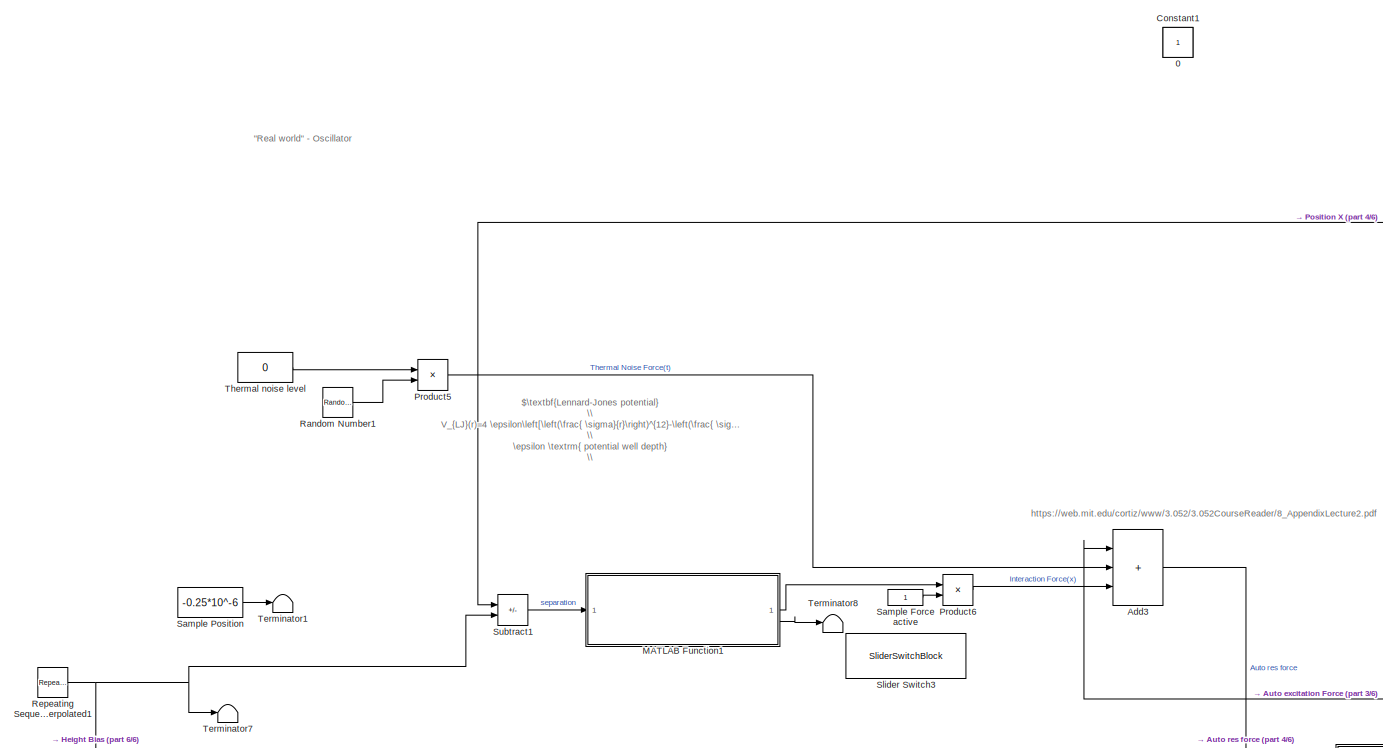
[diagram: root canvas - part 1/6, top left region]
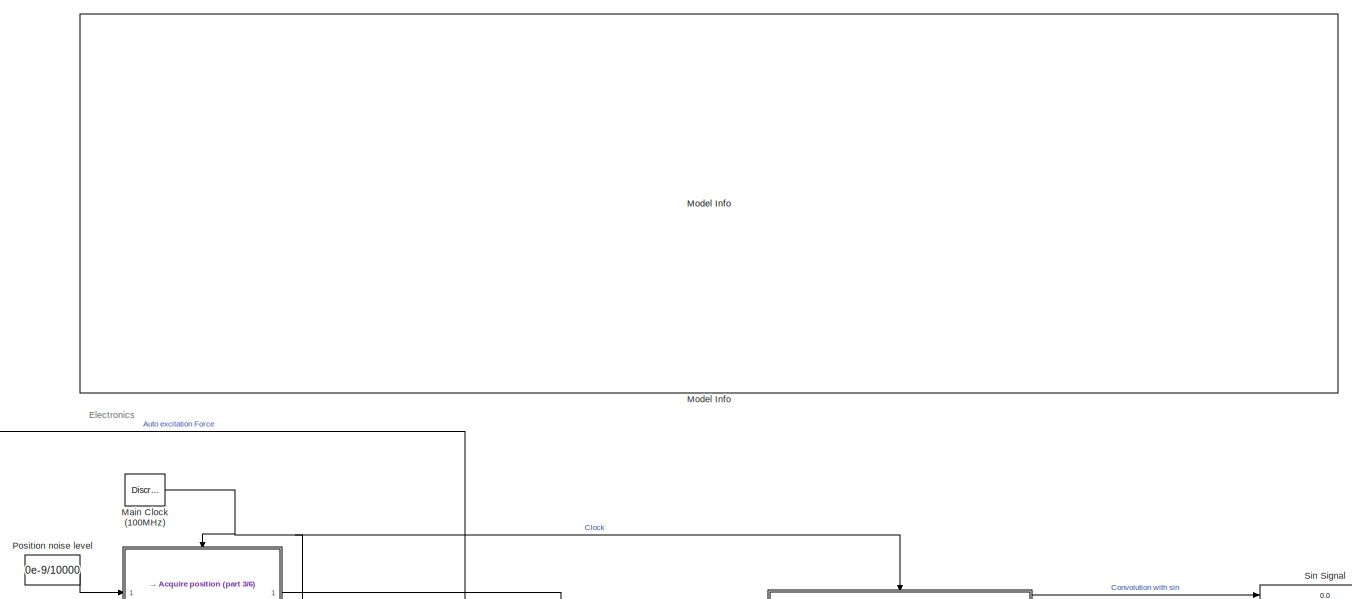
[diagram: root canvas - part 2/6, top right region]
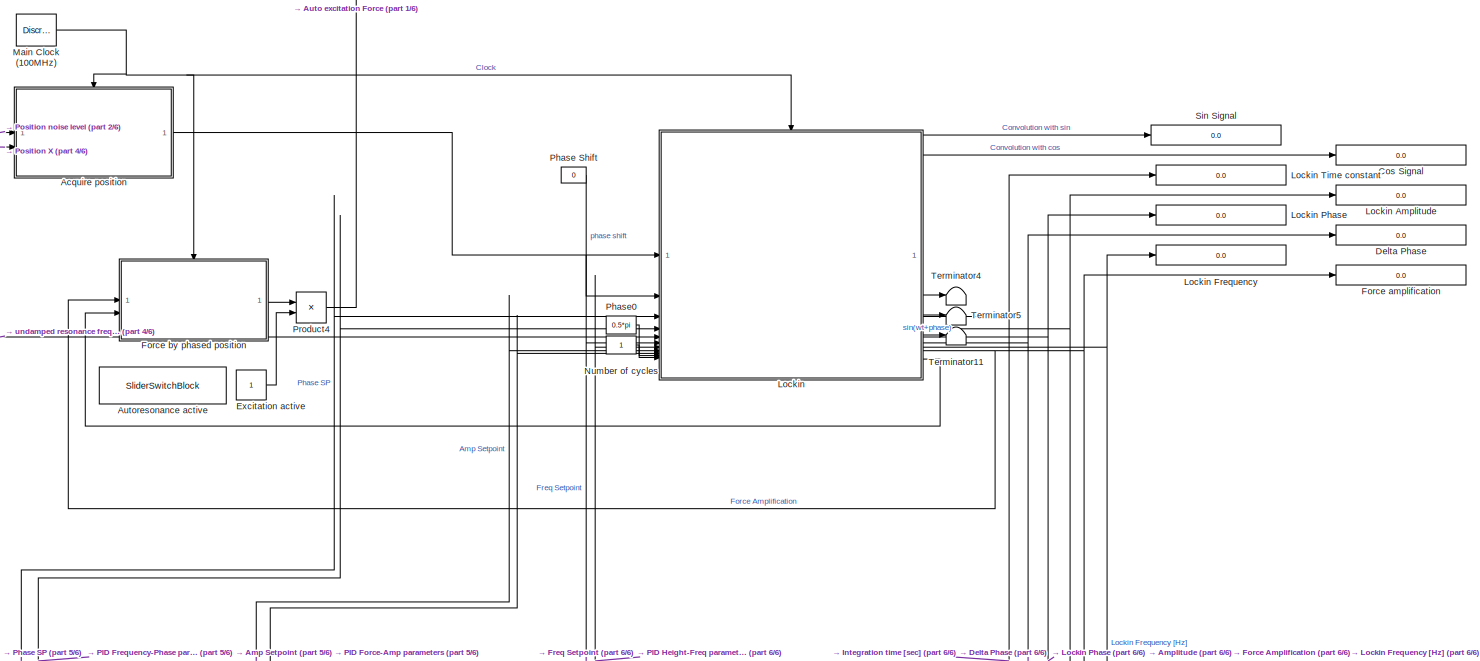
[diagram: root canvas - part 3/6, middle right region]
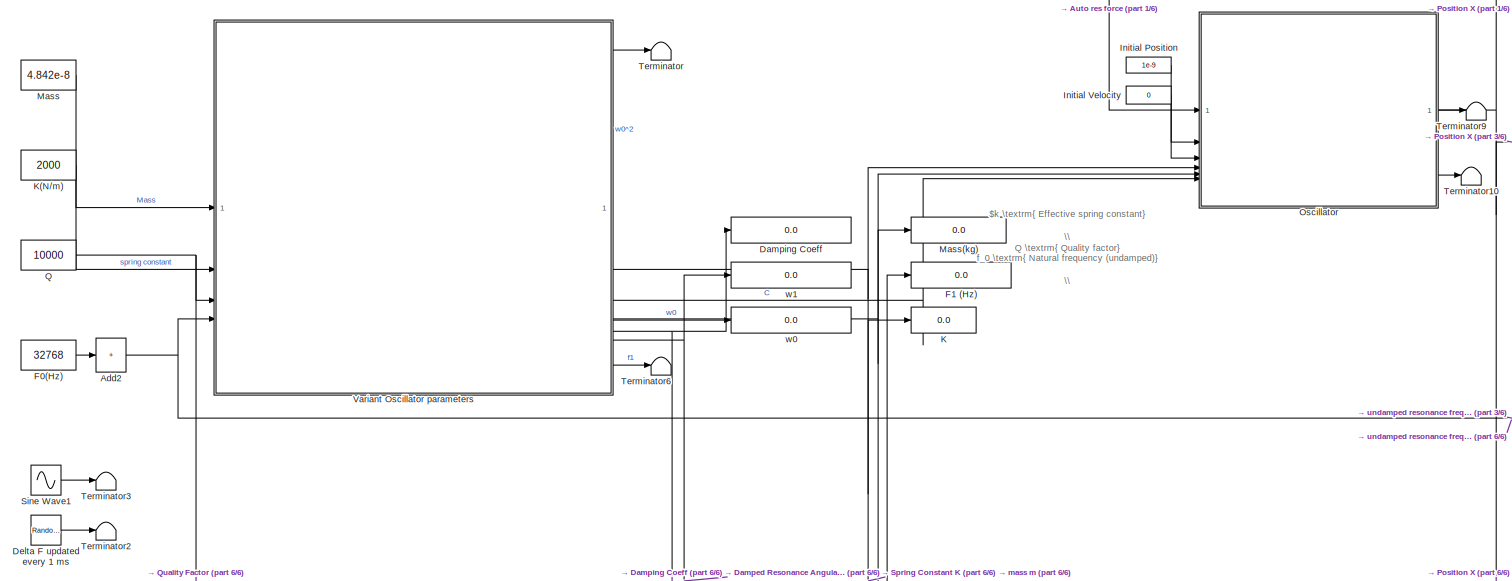
[diagram: root canvas - part 4/6, middle left region]
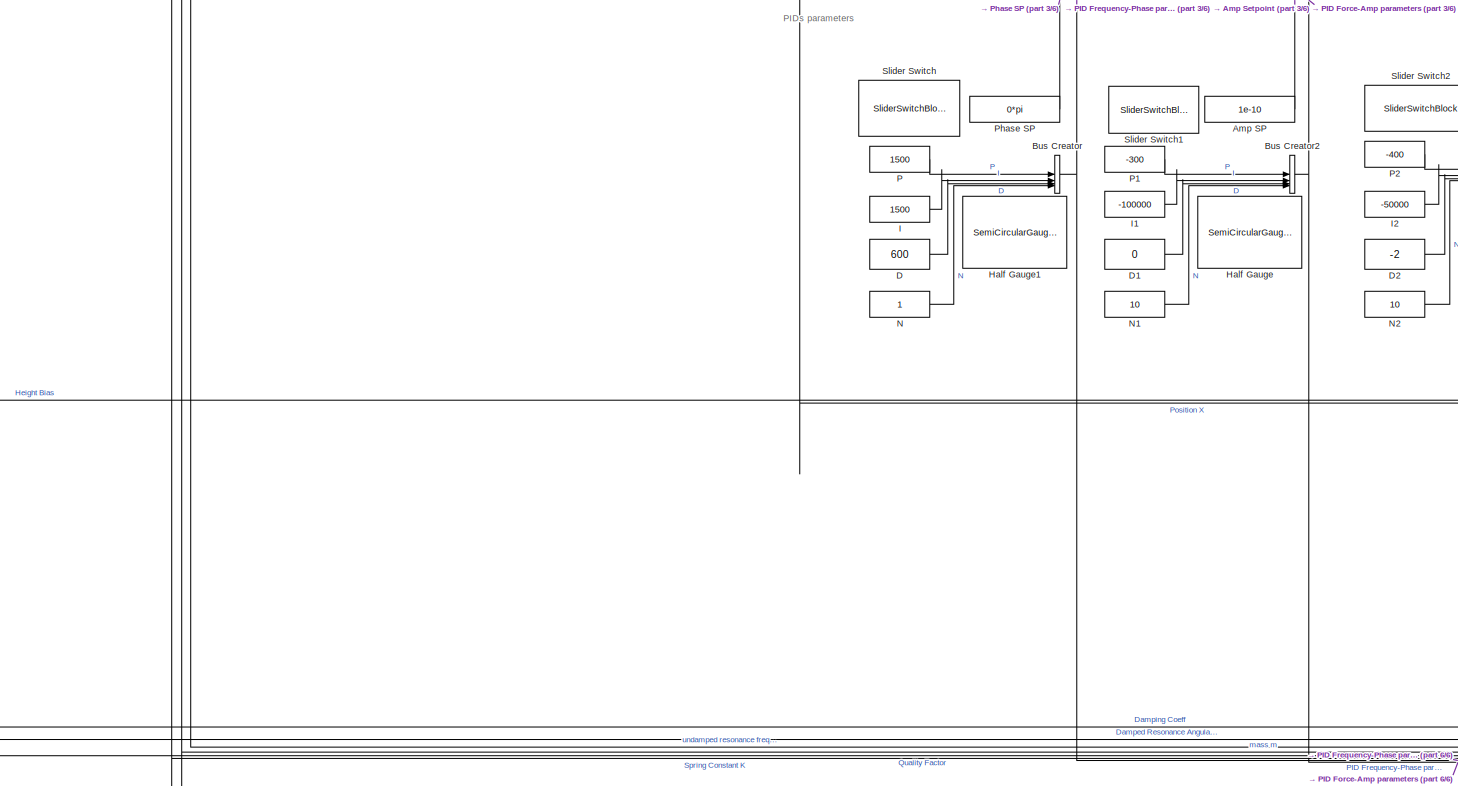
[diagram: root canvas - part 5/6, bottom center region]
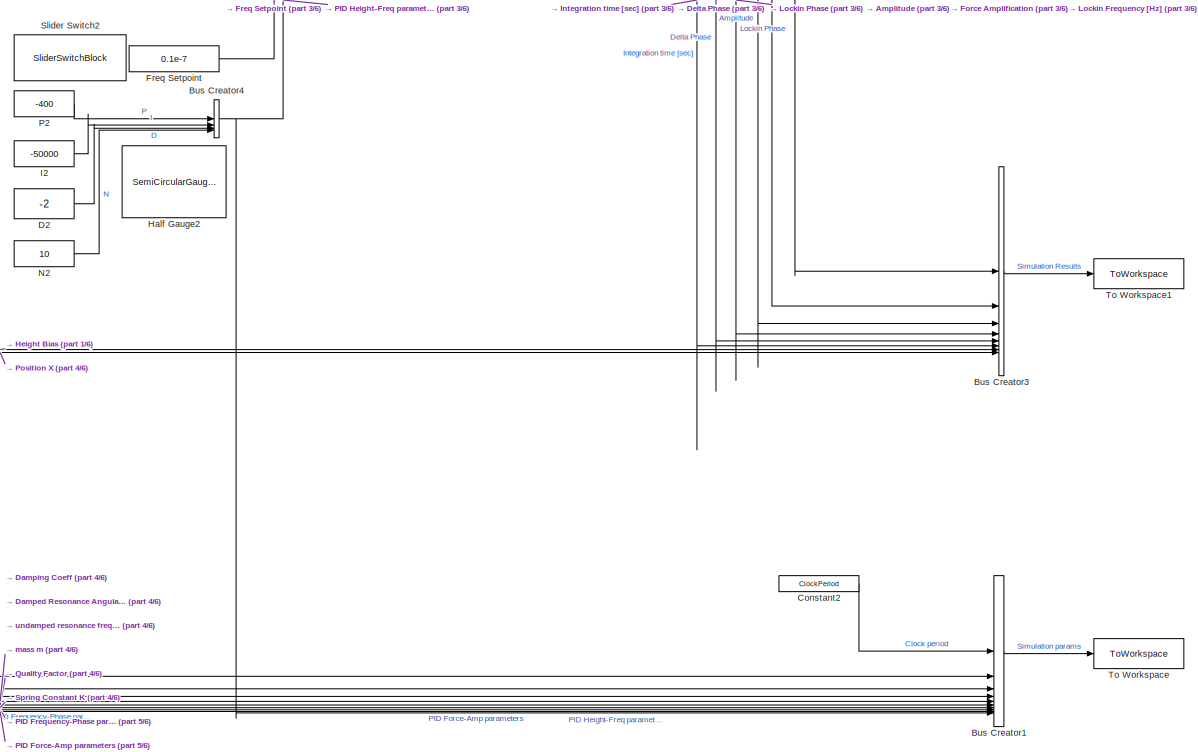
[diagram: root canvas - part 6/6, bottom right region]
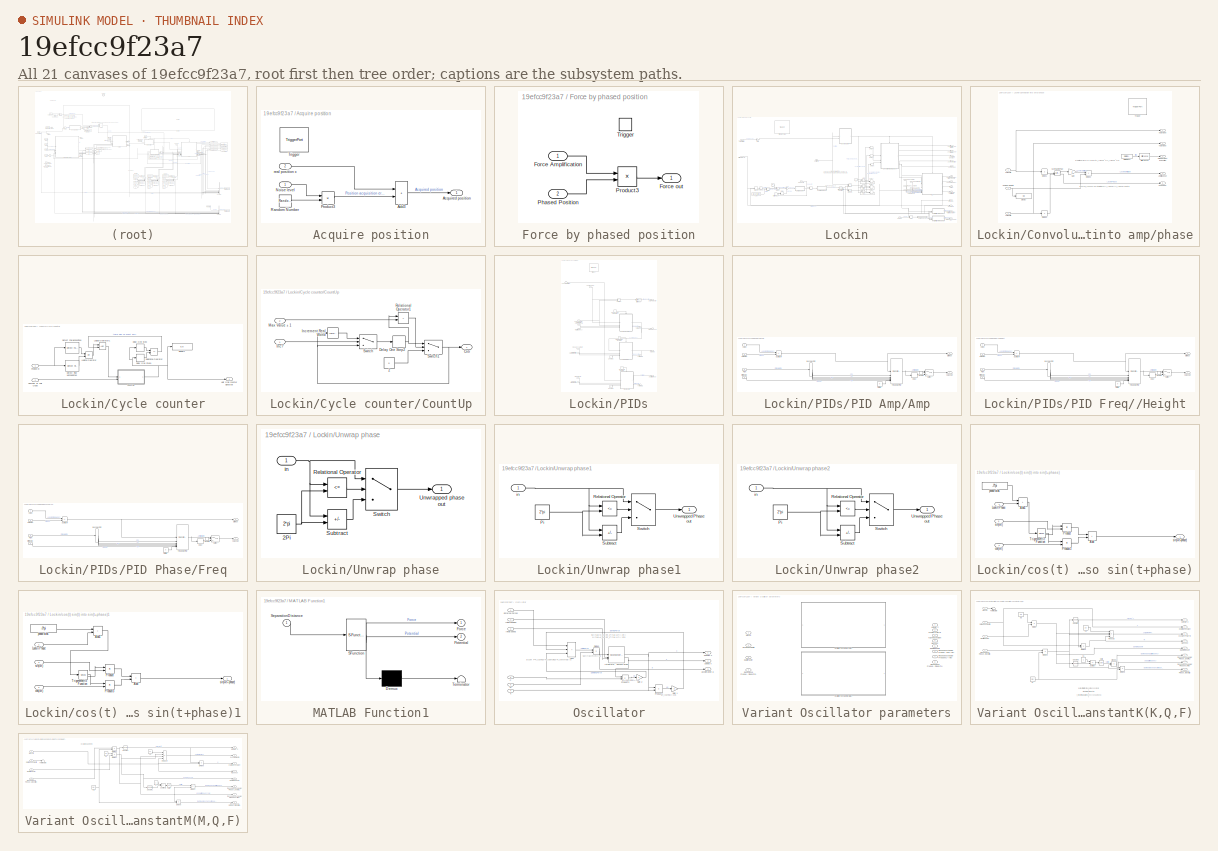
[diagram: thumbnail index - all 21 canvases of the model, root first then tree order]
MODEL slx_19efcc9f23a7
KIND model
CONFIG AbsTol = auto
CONFIG EnableMultiTasking = off
CONFIG FixedStep = auto
CONFIG MaxStep = auto
CONFIG MinStep = auto
CONFIG RelTol = 1e-3
CONFIG SampleTimeConstraint = Unconstrained
CONFIG SolverName = VariableStepAuto
CONFIG StartTime = 0.0
CONFIG StopTime = 0.6
WORKSPACE source: external: MAT-File  (data not in archive)
BLOCK [Constant] 0
  IOType = siggen
BLOCK [SubSystem] Acquire position
BLOCK [Outport] Acquire position/Acquired position
  VectorParamsAs1DForOutWhenUnconnected = off
BLOCK [Sum] Acquire position/Add3
  IconShape = rectangular
BLOCK [Inport] Acquire position/Noise level
BLOCK [Product] Acquire position/Product3
BLOCK [RandomNumber] Acquire position/Random Number
  Seed = 7546767
BLOCK [TriggerPort] Acquire position/Trigger
  PortDimensions = 1
  StatesWhenEnabling = held
  VariantControl = Variant
BLOCK [Inport] Acquire position/real position x
  Port = 2
BLOCK [Sum] Add2
  IconShape = rectangular
  Inputs = +
BLOCK [Sum] Add3
  IconShape = rectangular
  Inputs = +++
BLOCK [Constant] Amp SP
  SampleTime = 1e-5
  Value = 1e-10
  VectorParams1D = off
BLOCK [SliderSwitchBlock] Autoresonance active
BLOCK [BusCreator] Bus Creator
  DisplayOption = bar
  InheritFromInputs = on
  Inputs = P,I,D,N
BLOCK [BusCreator] Bus Creator1
  DisplayOption = bar
  InheritFromInputs = on
  Inputs = 10
BLOCK [BusCreator] Bus Creator2
  DisplayOption = bar
  InheritFromInputs = on
  Inputs = P,I,D,N
BLOCK [BusCreator] Bus Creator3
  DisplayOption = bar
  InheritFromInputs = on
  Inputs = 8
BLOCK [BusCreator] Bus Creator4
  DisplayOption = bar
  InheritFromInputs = on
  Inputs = P,I,D,N
BLOCK [Constant] Constant1
  IOType = siggen
BLOCK [Constant] Constant2
  Value = ClockPeriod
BLOCK [Display] Cos Signal
  Decimation = 1
  Format = long
BLOCK [Constant] D
  SampleTime = 1e-5
  Value = 600
BLOCK [Constant] D1
  SampleTime = 1e-5
  Value = 0
BLOCK [Constant] D2
  SampleTime = 1e-5
  Value = -2
BLOCK [Display] Damping Coeff
  Decimation = 1
  Format = long
BLOCK [RandomNumber] Delta F updated every 1 ms
  SampleTime = 1e-3
  Seed = 7546745
  Variance = 100
BLOCK [Display] Delta Phase
  Decimation = 1
  Format = long
BLOCK [Constant] Excitation active
  SampleTime = -1
BLOCK [Constant] F0(Hz)
  Value = 32768
BLOCK [Display] F1 (Hz)
  Decimation = 1
  Format = long
BLOCK [Display] Force amplification
  Decimation = 1
  Format = long
BLOCK [SubSystem] Force by phased position
  VariantControl = true
BLOCK [Inport] Force by phased position/Force Amplification
BLOCK [Outport] Force by phased position/Force out
  Unit = N
  VectorParamsAs1DForOutWhenUnconnected = off
BLOCK [Inport] Force by phased position/Phased Position
  Port = 2
BLOCK [Product] Force by phased position/Product3
BLOCK [TriggerPort] Force by phased position/Trigger
  PortDimensions = 1
  StatesWhenEnabling = held
  VariantControl = Variant
BLOCK [Constant] Freq Setpoint
  SampleTime = 1e-5
  Value = 0.1e-7
  VectorParams1D = off
BLOCK [SemiCircularGaugeBlock] Half Gauge
  LabelPosition = Bottom
  ScaleMax = 10e-11
  ScaleMin = -10e-11
BLOCK [SemiCircularGaugeBlock] Half Gauge1
  LabelPosition = Bottom
  ScaleMax = 5e-4
  ScaleMin = -5e-4
BLOCK [SemiCircularGaugeBlock] Half Gauge2
  LabelPosition = Bottom
  ScaleMax = 1e-9
  ScaleMin = -1e-9
BLOCK [Constant] I
  SampleTime = 1e-5
  Value = 1500
BLOCK [Constant] I1
  SampleTime = 1e-5
  Value = -100000
  VectorParams1D = off
BLOCK [Constant] I2
  SampleTime = 1e-5
  Value = -50000
  VectorParams1D = off
BLOCK [Constant] Initial Position
  NameLocation = left
  Value = 1e-9
  VectorParams1D = off
BLOCK [Constant] Initial Velocity
  NameLocation = left
  Value = 0
BLOCK [Display] K
  Decimation = 1
  Format = long
BLOCK [Constant] K(N//m)
  Value = 2000
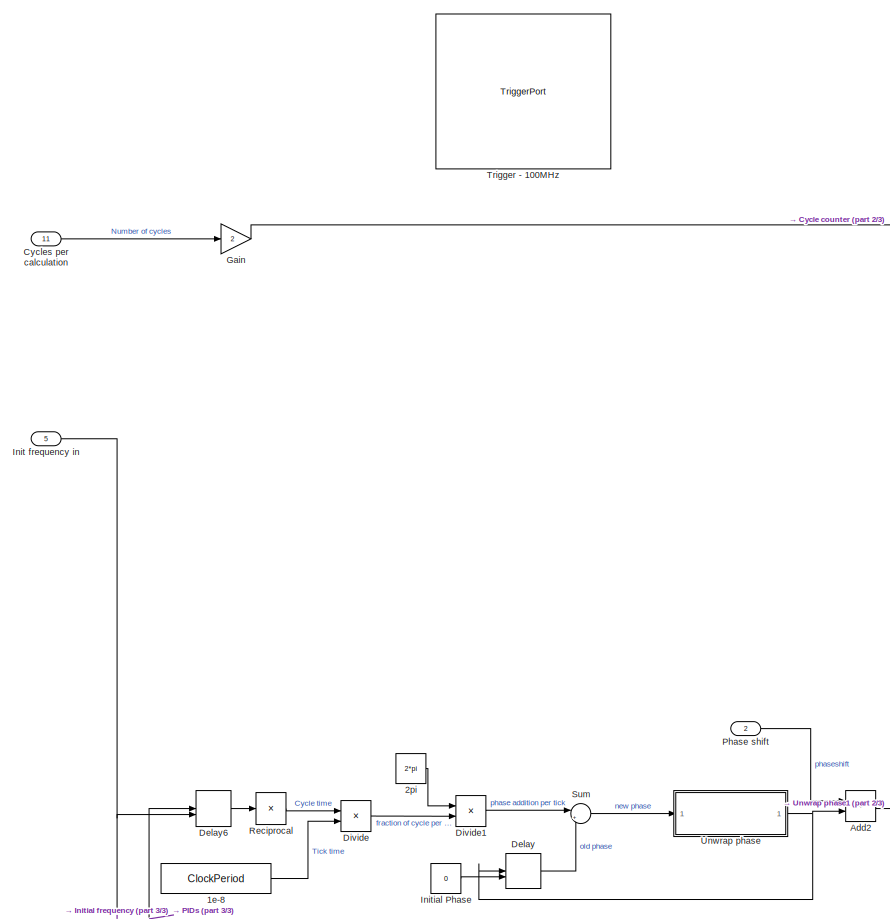
[diagram: Lockin - part 1/3, left side, full height]
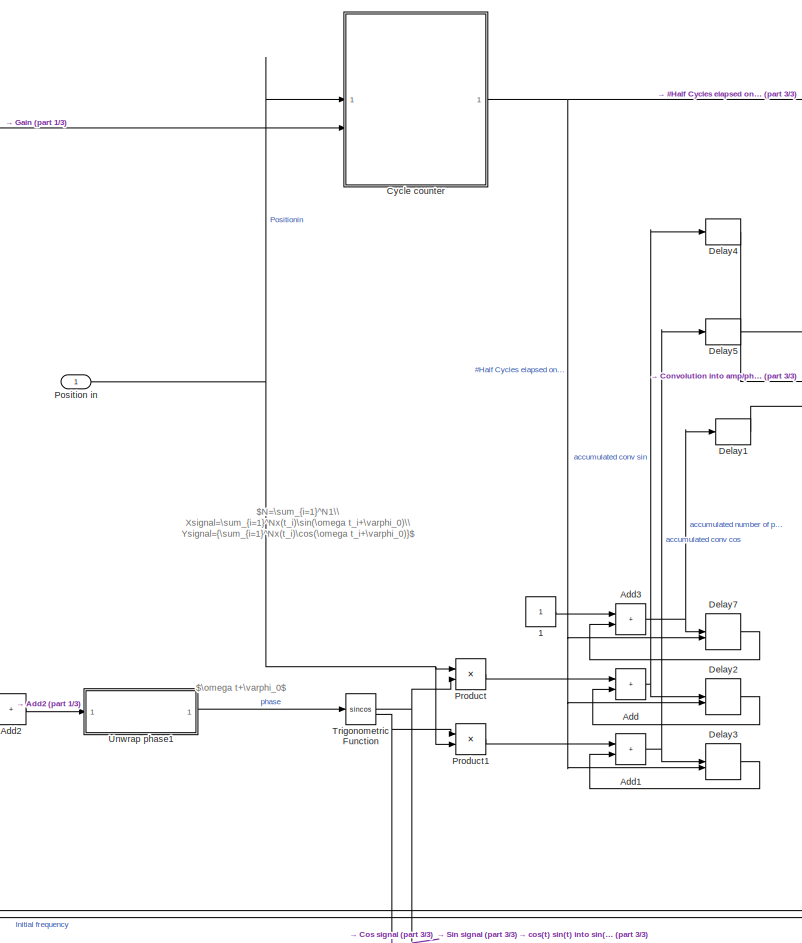
[diagram: Lockin - part 2/3, center side, full height]
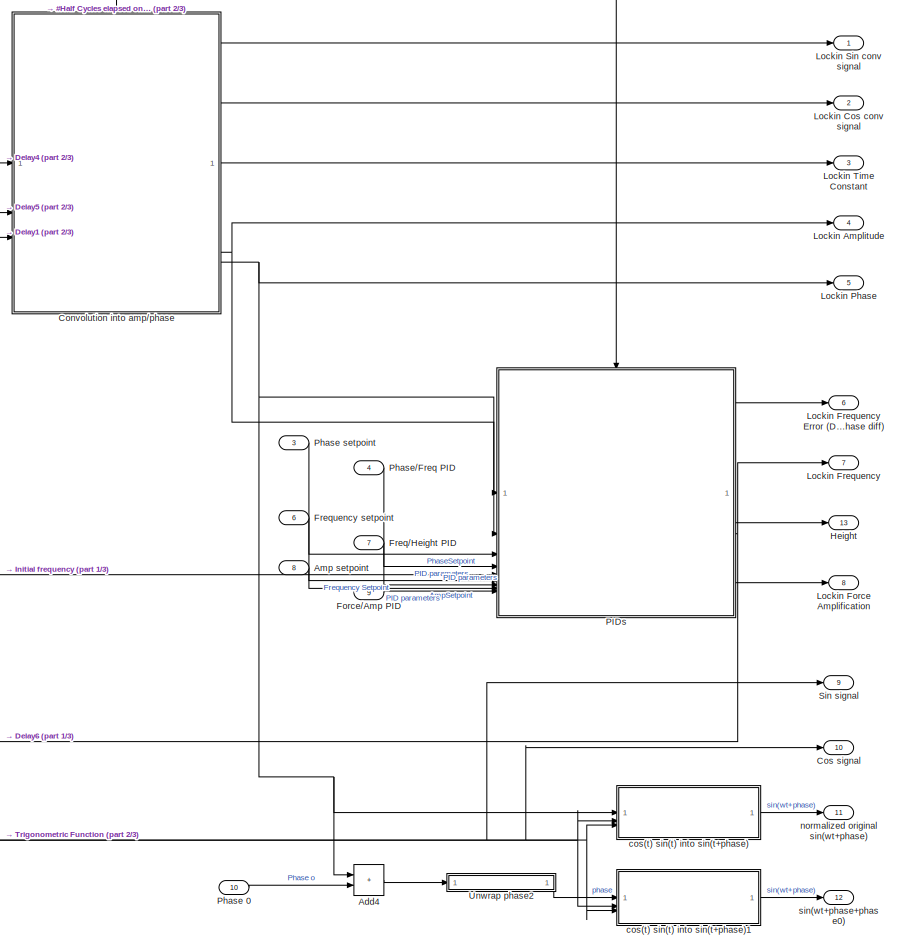
[diagram: Lockin - part 3/3, right side, full height]
BLOCK [SubSystem] Lockin
BLOCK [Display] Lockin Amplitude
  Decimation = 1
  Format = long
BLOCK [Display] Lockin Frequency
  Decimation = 1
  Format = long
BLOCK [Display] Lockin Phase
  Decimation = 1
  Format = long
BLOCK [Display] Lockin Time constant
  Decimation = 1
  Format = long
BLOCK [Constant] Lockin/1
  OutDataTypeStr = Inherit: Inherit via back propagation
BLOCK [Constant] Lockin/1e-8
  OutDataTypeStr = Inherit: Inherit via back propagation
  Value = ClockPeriod
BLOCK [Constant] Lockin/2pi
  OutDataTypeStr = Inherit: Inherit via back propagation
  Value = 2*pi
BLOCK [Sum] Lockin/Add
  IconShape = rectangular
BLOCK [Sum] Lockin/Add1
  IconShape = rectangular
BLOCK [Sum] Lockin/Add2
  IconShape = rectangular
BLOCK [Sum] Lockin/Add3
  IconShape = rectangular
BLOCK [Sum] Lockin/Add4
  IconShape = rectangular
BLOCK [Inport] Lockin/Amp setpoint
  Port = 8
  Unit = m
BLOCK [SubSystem] Lockin/Convolution into amp//phase
BLOCK [Outport] Lockin/Convolution into amp//phase/Amplitude out
  Port = 4
  Unit = m
  VectorParamsAs1DForOutWhenUnconnected = off
BLOCK [Reference] Lockin/Convolution into amp//phase/Cartesian to Polar  REF=simulink_extras/Transformations/Cartesian to
Polar
  SourceBlock = simulink_extras/Transformations/Cartesian to\nPolar
  SourceType = Cart2Polar
BLOCK [Reference] Lockin/Convolution into amp//phase/Difference1  REF=simulink/Quick Insert/Discrete/Difference
  SourceBlock = simulink/Quick Insert/Discrete/Difference
  SourceType = Difference
BLOCK [DigitalClock] Lockin/Convolution into amp//phase/Digital Clock
  SampleTime = -1
BLOCK [Display] Lockin/Convolution into amp//phase/Display
  Decimation = 1
  Format = long
BLOCK [Product] Lockin/Convolution into amp//phase/Divide1
  Inputs = *
BLOCK [Product] Lockin/Convolution into amp//phase/Divide2
  Inputs = */
BLOCK [Product] Lockin/Convolution into amp//phase/Divide3
  Inputs = *
BLOCK [Gain] Lockin/Convolution into amp//phase/Gain
  Gain = 2
BLOCK [Inport] Lockin/Convolution into amp//phase/Number of points
  Port = 3
BLOCK [Outport] Lockin/Convolution into amp//phase/Phase out
  Port = 5
  Unit = rad
  VectorParamsAs1DForOutWhenUnconnected = off
BLOCK [Outport] Lockin/Convolution into amp//phase/Time since last execution
  Port = 3
  Unit = sec
  VectorParamsAs1DForOutWhenUnconnected = off
BLOCK [TriggerPort] Lockin/Convolution into amp//phase/Trigger
  PortDimensions = 1
  StatesWhenEnabling = held
  TriggerType = falling
  VariantControl = Variant
BLOCK [Inport] Lockin/Convolution into amp//phase/X signal in
BLOCK [Outport] Lockin/Convolution into amp//phase/X signal out
  VectorParamsAs1DForOutWhenUnconnected = off
BLOCK [Inport] Lockin/Convolution into amp//phase/Y signal in
  Port = 2
BLOCK [Outport] Lockin/Convolution into amp//phase/Y signal out
  Port = 2
  VectorParamsAs1DForOutWhenUnconnected = off
BLOCK [Outport] Lockin/Cos signal
  Port = 10
  VectorParamsAs1DForOutWhenUnconnected = off
BLOCK [SubSystem] Lockin/Cycle counter
BLOCK [SubSystem] Lockin/Cycle counter/CountUp
BLOCK [Constant] Lockin/Cycle counter/CountUp/2
  OutDataTypeStr = uint16
  Value = 0
BLOCK [Outport] Lockin/Cycle counter/CountUp/Cntr
  VectorParamsAs1DForOutWhenUnconnected = off
BLOCK [Delay] Lockin/Cycle counter/CountUp/Delay One Step2
  DelayLength = 1
  InputPortMap = u0
BLOCK [Inport] Lockin/Cycle counter/CountUp/Inc?
BLOCK [Reference] Lockin/Cycle counter/CountUp/Increment Real World  REF=simulink/Additional Math
& Discrete/Additional Math:
Increment - Decrement/Increment
Real World
  SourceBlock = simulink/Additional Math\n& Discrete/Additional Math:\nIncrement - Decrement/Increment\nReal World
  SourceType = Real World Value Increment
BLOCK [Inport] Lockin/Cycle counter/CountUp/Max Value + 1
  Port = 2
BLOCK [RelationalOperator] Lockin/Cycle counter/CountUp/Relational Operator1
  InputSameDT = off
  Operator = <
  OutDataTypeStr = boolean
  RndMeth = Simplest
BLOCK [Switch] Lockin/Cycle counter/CountUp/Switch
  Criteria = u2 ~= 0
  InputSameDT = off
  SaturateOnIntegerOverflow = off
BLOCK [Switch] Lockin/Cycle counter/CountUp/Switch1
  Criteria = u2 ~= 0
  InputSameDT = off
  SaturateOnIntegerOverflow = off
BLOCK [Delay] Lockin/Cycle counter/Delay One Step
  DelayLength = 11
  InputPortMap = u0
BLOCK [Delay] Lockin/Cycle counter/Delay One Step1
  DelayLength = 1
  InputPortMap = u0
BLOCK [Reference] Lockin/Cycle counter/Detect Fall Nonpositive  REF=simulink/Logic and Bit
Operations/Detect Fall
Nonpositive
  SourceBlock = simulink/Logic and Bit\nOperations/Detect Fall\nNonpositive
  SourceType = Detect Fall Nonpositive
BLOCK [Reference] Lockin/Cycle counter/Detect Rise Nonnegative  REF=simulink/Logic and Bit
Operations/Detect Rise
Nonnegative
  SourceBlock = simulink/Logic and Bit\nOperations/Detect Rise\nNonnegative
  SourceType = Detect Rise Nonnegative
BLOCK [Display] Lockin/Cycle counter/Display1
  Decimation = 1
BLOCK [Outport] Lockin/Cycle counter/Half cycle counter signal out
  VectorParamsAs1DForOutWhenUnconnected = off
BLOCK [Logic] Lockin/Cycle counter/Logical Operator
  AllPortsSameDT = off
  Operator = OR
  OutDataTypeStr = boolean
BLOCK [Logic] Lockin/Cycle counter/Logical Operator1
  AllPortsSameDT = off
  OutDataTypeStr = boolean
BLOCK [Inport] Lockin/Cycle counter/Number of half cycles
  OutDataTypeStr = uint16
  Port = 2
BLOCK [Inport] Lockin/Cycle counter/Position in
BLOCK [RelationalOperator] Lockin/Cycle counter/Relational Operator
  InputSameDT = off
  Operator = ==
  OutDataTypeStr = boolean
  RndMeth = Simplest
BLOCK [Inport] Lockin/Cycles per calculation 
  OutDataTypeStr = uint16
  Port = 11
BLOCK [Delay] Lockin/Delay
  DelayLength = 1
  InitialCondition = 0
  InitialConditionSource = Input port
  InputPortMap = u0,p4
BLOCK [Delay] Lockin/Delay1
  DelayLength = 1
  InitialCondition = 0
  InputPortMap = u0
BLOCK [Delay] Lockin/Delay2
  DelayLength = 1
  ExternalReset = Falling
  InitialCondition = 0
  InputPortMap = u0,r5
BLOCK [Delay] Lockin/Delay3
  DelayLength = 1
  ExternalReset = Falling
  InitialCondition = 0
  InputPortMap = u0,r5
BLOCK [Delay] Lockin/Delay4
  DelayLength = 1
  InitialCondition = 0
  InputPortMap = u0
BLOCK [Delay] Lockin/Delay5
  DelayLength = 1
  InitialCondition = 0
  InputPortMap = u0
BLOCK [Delay] Lockin/Delay6
  DelayLength = 1
  InitialCondition = 0
  InitialConditionSource = Input port
  InputPortMap = u0,p4
BLOCK [Delay] Lockin/Delay7
  DelayLength = 1
  ExternalReset = Falling
  InitialCondition = 0
  InputPortMap = u0,r5
BLOCK [Product] Lockin/Divide
  Inputs = */
BLOCK [Product] Lockin/Divide1
  Inputs = */
BLOCK [Inport] Lockin/Force//Amp PID
  Port = 9
BLOCK [Inport] Lockin/Freq//Height PID
  Port = 7
BLOCK [Inport] Lockin/Frequency setpoint
  Port = 6
  Unit = Hz
BLOCK [Gain] Lockin/Gain
  Gain = 2
  OutDataTypeStr = uint16
BLOCK [Outport] Lockin/Height
  InitialOutput = [32769]
  Port = 13
  SourceOfInitialOutputValue = Input signal
  Unit = m
  VectorParamsAs1DForOutWhenUnconnected = off
BLOCK [Inport] Lockin/Init frequency in
  Port = 5
  Unit = Hz
BLOCK [Constant] Lockin/Initial Phase
  OutDataTypeStr = Inherit: Inherit via back propagation
  Value = 0
BLOCK [Outport] Lockin/Lockin Amplitude
  Port = 4
  Unit = m
  VectorParamsAs1DForOutWhenUnconnected = off
BLOCK [Outport] Lockin/Lockin Cos conv signal
  Port = 2
  VectorParamsAs1DForOutWhenUnconnected = off
BLOCK [Outport] Lockin/Lockin Force Amplification
  Port = 8
  VectorParamsAs1DForOutWhenUnconnected = off
BLOCK [Outport] Lockin/Lockin Frequency
  InitialOutput = [32769]
  Port = 7
  Unit = Hz
  VectorParamsAs1DForOutWhenUnconnected = off
BLOCK [Outport] Lockin/Lockin Frequency Error (Delta Phase diff)
  Port = 6
  VectorParamsAs1DForOutWhenUnconnected = off
BLOCK [Outport] Lockin/Lockin Phase
  Port = 5
  Unit = rad
  VectorParamsAs1DForOutWhenUnconnected = off
BLOCK [Outport] Lockin/Lockin Sin conv signal
  VectorParamsAs1DForOutWhenUnconnected = off
BLOCK [Outport] Lockin/Lockin Time Constant
  Port = 3
  Unit = sec
  VectorParamsAs1DForOutWhenUnconnected = off
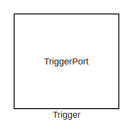
[diagram: Lockin/PIDs - part 1/3, top center region]
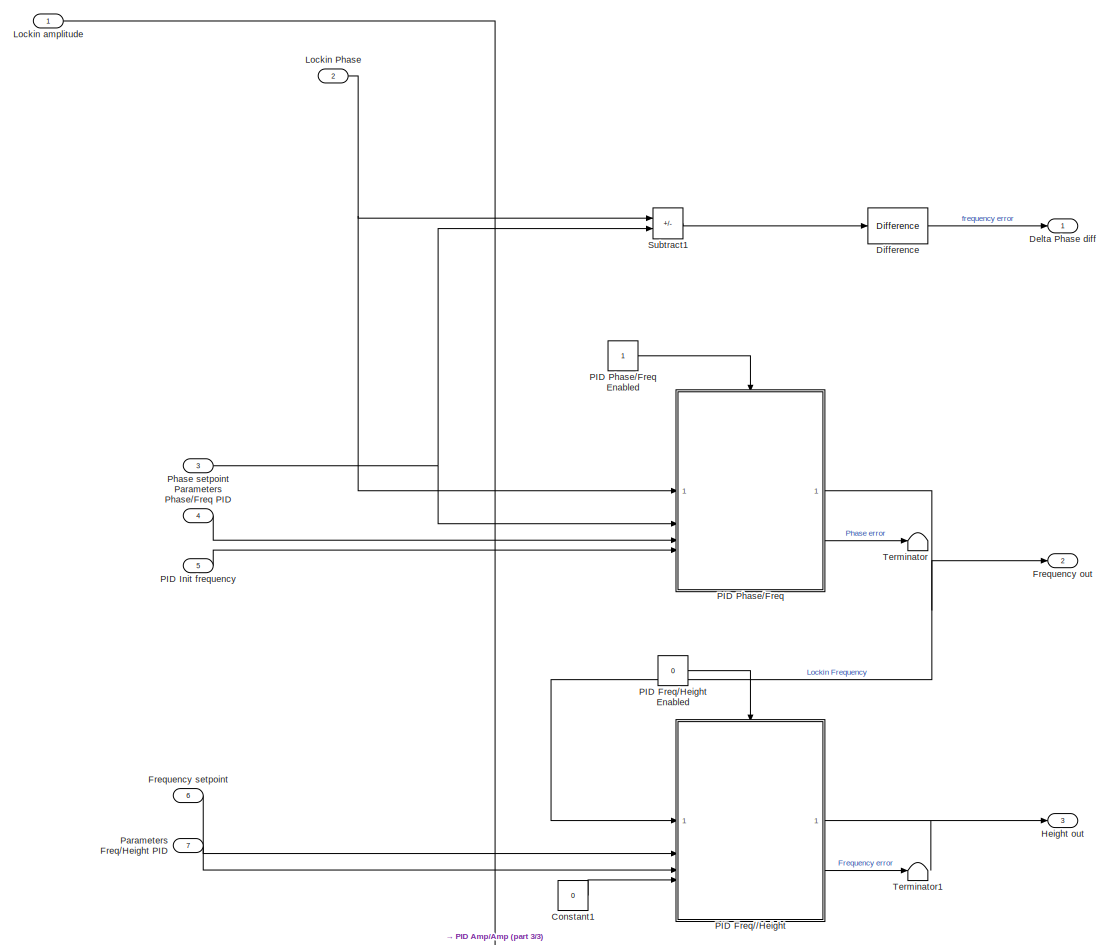
[diagram: Lockin/PIDs - part 2/3, full width, middle band]
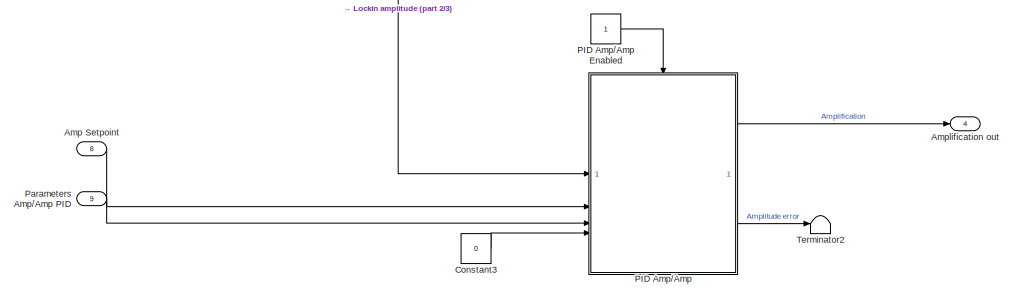
[diagram: Lockin/PIDs - part 3/3, full width, bottom band]
BLOCK [SubSystem] Lockin/PIDs
BLOCK [Inport] Lockin/PIDs/Amp Setpoint
  Port = 8
BLOCK [Outport] Lockin/PIDs/Amplification out
  Port = 4
  Unit = N
  VectorParamsAs1DForOutWhenUnconnected = off
BLOCK [Constant] Lockin/PIDs/Constant1
  Value = 0
BLOCK [Constant] Lockin/PIDs/Constant3
  Value = 0
BLOCK [Outport] Lockin/PIDs/Delta Phase diff
  Unit = rad
  VectorParamsAs1DForOutWhenUnconnected = off
BLOCK [Reference] Lockin/PIDs/Difference  REF=simulink/Quick Insert/Discrete/Difference
  SourceBlock = simulink/Quick Insert/Discrete/Difference
  SourceType = Difference
BLOCK [Outport] Lockin/PIDs/Frequency out
  InitialOutput = [32766]
  Port = 2
  Unit = Hz
  VectorParamsAs1DForOutWhenUnconnected = off
BLOCK [Inport] Lockin/PIDs/Frequency setpoint
  Port = 6
BLOCK [Outport] Lockin/PIDs/Height out
  Port = 3
  Unit = m
  VectorParamsAs1DForOutWhenUnconnected = off
BLOCK [Inport] Lockin/PIDs/Lockin Phase
  Port = 2
BLOCK [Inport] Lockin/PIDs/Lockin amplitude
BLOCK [SubSystem] Lockin/PIDs/PID Amp//Amp
  TreatAsAtomicUnit = on
BLOCK [Constant] Lockin/PIDs/PID Amp//Amp Enabled
BLOCK [BusSelector] Lockin/PIDs/PID Amp//Amp/Bus Selector2
  OutputSignals = P,I,D,N
BLOCK [Delay] Lockin/PIDs/PID Amp//Amp/Delay
  DelayLength = 1
  InitialCondition = 0
  InputPortMap = u0
BLOCK [EnablePort] Lockin/PIDs/PID Amp//Amp/Enable
  ShowOutputPort = on
BLOCK [Outport] Lockin/PIDs/PID Amp//Amp/Error out
  Port = 2
BLOCK [Reference] Lockin/PIDs/PID Amp//Amp/Freq//Height PID  REF=slpidlib/PID Controller
  SourceBlock = slpidlib/PID Controller
  SourceType = PID 1dof
BLOCK [Inport] Lockin/PIDs/PID Amp//Amp/Init integral
  Port = 4
BLOCK [Inport] Lockin/PIDs/PID Amp//Amp/PIDN
  Port = 3
BLOCK [Inport] Lockin/PIDs/PID Amp//Amp/Setpoint
  Port = 2
BLOCK [Sum] Lockin/PIDs/PID Amp//Amp/Subtract4
  IconShape = rectangular
  Inputs = +-
BLOCK [Switch] Lockin/PIDs/PID Amp//Amp/Switch
  Criteria = u2 > Threshold
  InputSameDT = off
  SaturateOnIntegerOverflow = off
BLOCK [Inport] Lockin/PIDs/PID Amp//Amp/Value
BLOCK [Outport] Lockin/PIDs/PID Amp//Amp/Value Out
BLOCK [Constant] Lockin/PIDs/PID Amp//Amp/init Filter
  Value = 0
BLOCK [SubSystem] Lockin/PIDs/PID Freq////Height
  TreatAsAtomicUnit = on
BLOCK [BusSelector] Lockin/PIDs/PID Freq////Height/Bus Selector2
  OutputSignals = P,I,D,N
BLOCK [Delay] Lockin/PIDs/PID Freq////Height/Delay
  DelayLength = 1
  InitialCondition = 0
  InputPortMap = u0
BLOCK [EnablePort] Lockin/PIDs/PID Freq////Height/Enable
  ShowOutputPort = on
BLOCK [Outport] Lockin/PIDs/PID Freq////Height/Error out
  Port = 2
BLOCK [Reference] Lockin/PIDs/PID Freq////Height/Freq//Height PID  REF=slpidlib/PID Controller
  SourceBlock = slpidlib/PID Controller
  SourceType = PID 1dof
BLOCK [Inport] Lockin/PIDs/PID Freq////Height/Init integral
  Port = 4
BLOCK [Inport] Lockin/PIDs/PID Freq////Height/PIDN
  Port = 3
BLOCK [Inport] Lockin/PIDs/PID Freq////Height/Setpoint
  Port = 2
BLOCK [Sum] Lockin/PIDs/PID Freq////Height/Subtract4
  IconShape = rectangular
  Inputs = +-
BLOCK [Switch] Lockin/PIDs/PID Freq////Height/Switch
  Criteria = u2 > Threshold
  InputSameDT = off
  SaturateOnIntegerOverflow = off
BLOCK [Inport] Lockin/PIDs/PID Freq////Height/Value
BLOCK [Outport] Lockin/PIDs/PID Freq////Height/Value Out
BLOCK [Constant] Lockin/PIDs/PID Freq////Height/init Filter
  Value = 0
BLOCK [Constant] Lockin/PIDs/PID Freq//Height Enabled
  Value = 0
BLOCK [Inport] Lockin/PIDs/PID Init frequency
  Port = 5
BLOCK [SubSystem] Lockin/PIDs/PID Phase//Freq
  TreatAsAtomicUnit = on
BLOCK [Constant] Lockin/PIDs/PID Phase//Freq Enabled
BLOCK [BusSelector] Lockin/PIDs/PID Phase//Freq/Bus Selector2
  OutputSignals = P,I,D,N
BLOCK [Delay] Lockin/PIDs/PID Phase//Freq/Delay
  DelayLength = 1
  InitialCondition = 0
  InputPortMap = u0
BLOCK [EnablePort] Lockin/PIDs/PID Phase//Freq/Enable
  ShowOutputPort = on
BLOCK [Outport] Lockin/PIDs/PID Phase//Freq/Error out
  Port = 2
BLOCK [Reference] Lockin/PIDs/PID Phase//Freq/Freq//Height PID  REF=slpidlib/PID Controller
  SourceBlock = slpidlib/PID Controller
  SourceType = PID 1dof
BLOCK [Inport] Lockin/PIDs/PID Phase//Freq/Init integral
  Port = 4
BLOCK [Inport] Lockin/PIDs/PID Phase//Freq/PIDN
  Port = 3
BLOCK [Inport] Lockin/PIDs/PID Phase//Freq/Setpoint
  Port = 2
BLOCK [Sum] Lockin/PIDs/PID Phase//Freq/Subtract4
  IconShape = rectangular
  Inputs = +-
BLOCK [Switch] Lockin/PIDs/PID Phase//Freq/Switch
  Criteria = u2 > Threshold
  InputSameDT = off
  SaturateOnIntegerOverflow = off
BLOCK [Inport] Lockin/PIDs/PID Phase//Freq/Value
BLOCK [Outport] Lockin/PIDs/PID Phase//Freq/Value Out
BLOCK [Constant] Lockin/PIDs/PID Phase//Freq/init Filter
  Value = 0
BLOCK [Inport] Lockin/PIDs/Parameters Amp//Amp PID
  Port = 9
BLOCK [Inport] Lockin/PIDs/Parameters Freq//Height PID
  Port = 7
BLOCK [Inport] Lockin/PIDs/Parameters Phase//Freq PID
  Port = 4
BLOCK [Inport] Lockin/PIDs/Phase setpoint
  Port = 3
BLOCK [Sum] Lockin/PIDs/Subtract1
  IconShape = rectangular
  Inputs = +-
BLOCK [Terminator] Lockin/PIDs/Terminator
BLOCK [Terminator] Lockin/PIDs/Terminator1
BLOCK [Terminator] Lockin/PIDs/Terminator2
BLOCK [TriggerPort] Lockin/PIDs/Trigger
  PortDimensions = 1
  StatesWhenEnabling = held
  TriggerType = falling
  VariantControl = Variant
BLOCK [Inport] Lockin/Phase 0
  Port = 10
  Unit = rad
BLOCK [Inport] Lockin/Phase setpoint
  OutMax = [2]
  OutMin = [-2]
  Port = 3
  Unit = rad
BLOCK [Inport] Lockin/Phase shift
  OutMax = [2]
  OutMin = [-2]
  Port = 2
  Unit = rad
BLOCK [Inport] Lockin/Phase//Freq PID
  Port = 4
BLOCK [Inport] Lockin/Position in
  Unit = m
BLOCK [Product] Lockin/Product
BLOCK [Product] Lockin/Product1
BLOCK [Product] Lockin/Reciprocal
  Inputs = /
BLOCK [Outport] Lockin/Sin signal
  Port = 9
  VectorParamsAs1DForOutWhenUnconnected = off
BLOCK [Sum] Lockin/Sum
  Inputs = |++
BLOCK [TriggerPort] Lockin/Trigger - 100MHz
  PortDimensions = 1
  StatesWhenEnabling = held
  VariantControl = Variant
BLOCK [Trigonometry] Lockin/Trigonometric Function
  ApproximationMethod = CORDIC
  NumberOfIterations = 64
  Operator = sincos
BLOCK [SubSystem] Lockin/Unwrap phase
BLOCK [Constant] Lockin/Unwrap phase/2Pi
  OutDataTypeStr = Inherit: Inherit via back propagation
  Value = 2*pi
BLOCK [RelationalOperator] Lockin/Unwrap phase/Relational Operator
  InputSameDT = off
  Operator = <=
  OutDataTypeStr = boolean
  RndMeth = Simplest
BLOCK [Sum] Lockin/Unwrap phase/Subtract
  IconShape = rectangular
  Inputs = +-
BLOCK [Switch] Lockin/Unwrap phase/Switch
  Criteria = u2 > Threshold
  InputSameDT = off
  SaturateOnIntegerOverflow = off
BLOCK [Outport] Lockin/Unwrap phase/Unwrapped phase out
  Unit = rad
  VectorParamsAs1DForOutWhenUnconnected = off
BLOCK [Inport] Lockin/Unwrap phase/in
  Unit = rad
BLOCK [SubSystem] Lockin/Unwrap phase1
BLOCK [Constant] Lockin/Unwrap phase1/Pi
  OutDataTypeStr = Inherit: Inherit via back propagation
  Value = 2*pi
BLOCK [RelationalOperator] Lockin/Unwrap phase1/Relational Operator
  InputSameDT = off
  Operator = <=
  OutDataTypeStr = boolean
  RndMeth = Simplest
BLOCK [Sum] Lockin/Unwrap phase1/Subtract
  IconShape = rectangular
  Inputs = +-
BLOCK [Switch] Lockin/Unwrap phase1/Switch
  Criteria = u2 > Threshold
  InputSameDT = off
  SaturateOnIntegerOverflow = off
BLOCK [Outport] Lockin/Unwrap phase1/Unwrapped Phase out
  Unit = rad
  VectorParamsAs1DForOutWhenUnconnected = off
BLOCK [Inport] Lockin/Unwrap phase1/in
BLOCK [SubSystem] Lockin/Unwrap phase2
BLOCK [Constant] Lockin/Unwrap phase2/Pi
  OutDataTypeStr = Inherit: Inherit via back propagation
  Value = 2*pi
BLOCK [RelationalOperator] Lockin/Unwrap phase2/Relational Operator
  InputSameDT = off
  Operator = <=
  OutDataTypeStr = boolean
  RndMeth = Simplest
BLOCK [Sum] Lockin/Unwrap phase2/Subtract
  IconShape = rectangular
  Inputs = +-
BLOCK [Switch] Lockin/Unwrap phase2/Switch
  Criteria = u2 > Threshold
  InputSameDT = off
  SaturateOnIntegerOverflow = off
BLOCK [Outport] Lockin/Unwrap phase2/Unwrapped Phase out
  Unit = rad
  VectorParamsAs1DForOutWhenUnconnected = off
BLOCK [Inport] Lockin/Unwrap phase2/in
BLOCK [SubSystem] Lockin/cos(t) sin(t) into sin(t+phase)
BLOCK [Sum] Lockin/cos(t) sin(t) into sin(t+phase)/Add
  IconShape = rectangular
BLOCK [Sum] Lockin/cos(t) sin(t) into sin(t+phase)/Add1
  IconShape = rectangular
BLOCK [Inport] Lockin/cos(t) sin(t) into sin(t+phase)/Lockin Phase
  Unit = rad
BLOCK [Product] Lockin/cos(t) sin(t) into sin(t+phase)/Product
BLOCK [Product] Lockin/cos(t) sin(t) into sin(t+phase)/Product3
BLOCK [Trigonometry] Lockin/cos(t) sin(t) into sin(t+phase)/Trigonometric Function
  ApproximationMethod = CORDIC
  NumberOfIterations = 64
  Operator = sincos
BLOCK [Inport] Lockin/cos(t) sin(t) into sin(t+phase)/cos(wt)
  Port = 2
BLOCK [Constant] Lockin/cos(t) sin(t) into sin(t+phase)/phase bias
  SampleTime = -1
  Value = -0*pi
BLOCK [Inport] Lockin/cos(t) sin(t) into sin(t+phase)/sin(wt)
  Port = 3
BLOCK [Outport] Lockin/cos(t) sin(t) into sin(t+phase)/sin(wt+phase)
BLOCK [SubSystem] Lockin/cos(t) sin(t) into sin(t+phase)1
BLOCK [Sum] Lockin/cos(t) sin(t) into sin(t+phase)1/Add
  IconShape = rectangular
BLOCK [Sum] Lockin/cos(t) sin(t) into sin(t+phase)1/Add1
  IconShape = rectangular
BLOCK [Inport] Lockin/cos(t) sin(t) into sin(t+phase)1/Lockin Phase
  Unit = rad
BLOCK [Product] Lockin/cos(t) sin(t) into sin(t+phase)1/Product
BLOCK [Product] Lockin/cos(t) sin(t) into sin(t+phase)1/Product3
BLOCK [Trigonometry] Lockin/cos(t) sin(t) into sin(t+phase)1/Trigonometric Function
  ApproximationMethod = CORDIC
  NumberOfIterations = 64
  Operator = sincos
BLOCK [Inport] Lockin/cos(t) sin(t) into sin(t+phase)1/cos(wt)
  Port = 2
BLOCK [Constant] Lockin/cos(t) sin(t) into sin(t+phase)1/phase bias
  SampleTime = -1
  Value = -0*pi
BLOCK [Inport] Lockin/cos(t) sin(t) into sin(t+phase)1/sin(wt)
  Port = 3
BLOCK [Outport] Lockin/cos(t) sin(t) into sin(t+phase)1/sin(wt+phase)
BLOCK [Outport] Lockin/normalized original sin(wt+phase)
  Port = 11
  VectorParamsAs1DForOutWhenUnconnected = off
BLOCK [Outport] Lockin/sin(wt+phase+phase0)
  Port = 12
  VectorParamsAs1DForOutWhenUnconnected = off
BLOCK [SubSystem] MATLAB Function1
  ErrorFcn = Stateflow.Translate.translate
  PermitHierarchicalResolution = ExplicitOnly
  SFBlockType = MATLAB Function
  TreatAsAtomicUnit = on
BLOCK [Demux] MATLAB Function1/ Demux 
  Outputs = 1
BLOCK [S-Function] MATLAB Function1/ SFunction 
  EnableBusSupport = on
  FunctionName = sf_sfun
  PortCounts = [1 3]
  SFcnIsStateOwnerBlock = off
  SFunctionDeploymentMode = off
  Tag = Stateflow S-Function 1
BLOCK [Terminator] MATLAB Function1/ Terminator 
BLOCK [Outport] MATLAB Function1/Force
  VectorParamsAs1DForOutWhenUnconnected = off
BLOCK [Outport] MATLAB Function1/Potential
  Port = 2
  VectorParamsAs1DForOutWhenUnconnected = off
BLOCK [Inport] MATLAB Function1/SeparationDistance
BLOCK [DiscretePulseGenerator] Main Clock (100MHz)
  Period = ClockPeriod
  PulseType = Time based
  PulseWidth = 50
BLOCK [Constant] Mass
  Value = 4.842e-8
BLOCK [Display] Mass(kg)
  Decimation = 1
  Format = short_e
BLOCK [Reference] Model Info  REF=simulink/Model-Wide
Utilities/Model Info
  SourceBlock = simulink/Model-Wide\nUtilities/Model Info
  SourceType = CMBlock
BLOCK [Constant] N
  SampleTime = 1e-5
BLOCK [Constant] N1
  SampleTime = 1e-5
  Value = 10
BLOCK [Constant] N2
  SampleTime = 1e-5
  Value = 10
BLOCK [Constant] Number of cycles
  NameLocation = left
  OutDataTypeStr = uint16
  SampleTime = -1
BLOCK [SubSystem] Oscillator
BLOCK [Outport] Oscillator/ position x
BLOCK [Sum] Oscillator/Add4
  IconShape = rectangular
  Inputs = +++
BLOCK [Inport] Oscillator/C
  Port = 6
  Unit = N*sec/m
BLOCK [Product] Oscillator/Divide3
  Inputs = */
BLOCK [Inport] Oscillator/External Forces
BLOCK [Gain] Oscillator/Gain 1
  Gain = -1
BLOCK [Gain] Oscillator/Gain 2
  Gain = -1
BLOCK [Inport] Oscillator/Initial Position
  Port = 2
BLOCK [Inport] Oscillator/Initial speed
  Port = 3
BLOCK [SecondOrderIntegrator] Oscillator/Integrator, Second-Order
  ICSourceDXDT = external
  ICSourceX = external
  LimitX = on
  LowerLimitX = -0.01
  StateNameDXDT = 'v'
  StateNameX = 'x'
  UpperLimitX = 0.01
BLOCK [Product] Oscillator/Product1
BLOCK [Product] Oscillator/Product2
BLOCK [Outport] Oscillator/acceleration a
  Port = 3
BLOCK [Inport] Oscillator/k
  Port = 4
BLOCK [Inport] Oscillator/m
  Port = 5
BLOCK [Outport] Oscillator/speed v
  Port = 2
BLOCK [Constant] P
  SampleTime = 1e-5
  Value = 1500
BLOCK [Constant] P1
  SampleTime = 1e-5
  Value = -300
BLOCK [Constant] P2
  SampleTime = 1e-5
  Value = -400
BLOCK [Constant] Phase SP
  SampleTime = 1e-5
  Value = 0*pi
BLOCK [Constant] Phase Shift
  SampleTime = -1
  Value = 0
  VectorParams1D = off
BLOCK [Constant] Phase0
  NameLocation = left
  SampleTime = -1
  Value = 0.5*pi
BLOCK [Constant] Position noise level
  SampleTime = -1
  Value = 0e-9/10000
  VectorParams1D = off
BLOCK [Product] Product4
BLOCK [Product] Product5
BLOCK [Product] Product6
BLOCK [Constant] Q
  Value = 10000
BLOCK [RandomNumber] Random Number1
  SampleTime = 10^-8
  Seed = 754666
BLOCK [Reference] Repeating Sequence Interpolated1  REF=simulink/Sources/Repeating
Sequence
Interpolated
  SourceBlock = simulink/Sources/Repeating\nSequence\nInterpolated
  SourceType = Repeating Sequence Interpolated
BLOCK [Constant] Sample Force active
  SampleTime = -1
BLOCK [Constant] Sample Position
  SampleTime = -1
  Value = -0.25*10^-6
BLOCK [Display] Sin Signal
  Decimation = 1
  Format = long
BLOCK [Sin] Sine Wave1
  Amplitude = 20
  Frequency = 5000
  Phase = 0.0001
  SampleTime = 10e-6
BLOCK [SliderSwitchBlock] Slider Switch
BLOCK [SliderSwitchBlock] Slider Switch1
BLOCK [SliderSwitchBlock] Slider Switch2
BLOCK [SliderSwitchBlock] Slider Switch3
BLOCK [Sum] Subtract1
  IconShape = rectangular
  Inputs = +-
  OutMin = [0]
  RndMeth = Nearest
BLOCK [Terminator] Terminator
BLOCK [Terminator] Terminator1
BLOCK [Terminator] Terminator10
BLOCK [Terminator] Terminator11
BLOCK [Terminator] Terminator2
BLOCK [Terminator] Terminator3
BLOCK [Terminator] Terminator4
BLOCK [Terminator] Terminator5
BLOCK [Terminator] Terminator6
BLOCK [Terminator] Terminator7
BLOCK [Terminator] Terminator8
BLOCK [Terminator] Terminator9
BLOCK [Constant] Thermal noise level
  SampleTime = -1
  Value = 0
  VectorParams1D = off
BLOCK [ToWorkspace] To Workspace
  FixptAsFi = on
  MaxDataPoints = inf
  SampleTime = 1
  SaveFormat = Timeseries
  VariableName = simout_Parameters
BLOCK [ToWorkspace] To Workspace1
  FixptAsFi = on
  MaxDataPoints = inf
  SampleTime = 1e-5
  SaveFormat = Timeseries
  VariableName = simout_RunData
BLOCK [SubSystem] Variant Oscillator parameters
  Description = k  \textrm{ Effective spring constant.}\n\\\nQ  \textrm{ Quality factor.}\n\\\nf_0  \textrm{ Natural frequency undamped.}\n\\\n\omega_0=2\pi f_0 \textrm{ Natural angular frequency.}\n\\\nm=\frac{k}{\omega_0^2}  \textrm{ Effective mass.}\n\\\n\zeta=\frac{1}{2Q} \textrm{ Damping Coefficient.}\n\\\n\omega_1=\sqrt{(1-\zeta^2)}\omega_0\textrm{ Resonance angular frequency (damped)}\n\\\nf_1= \omega_1=\sqrt{(1-\zeta^2...<+43ch>
  LabelModeActiveChoice = OscillatorTypeVar==0
  PropagateVariantConditions = on
  Variant = on
  VariantControlMode = label
BLOCK [Outport] Variant Oscillator parameters/C=zeta*2*w0*m
  Port = 3
  VectorParamsAs1DForOutWhenUnconnected = off
BLOCK [Outport] Variant Oscillator parameters/Damping Coeff
  Port = 5
  VectorParamsAs1DForOutWhenUnconnected = off
BLOCK [Inport] Variant Oscillator parameters/Mass in
  Unit = kg
BLOCK [Outport] Variant Oscillator parameters/Mass out
  Port = 4
  Unit = kg
  VectorParamsAs1DForOutWhenUnconnected = off
BLOCK [SubSystem] Variant Oscillator parameters/OscillatorConstantK(K,Q,F)
  VariantControl = OscillatorTypeVar==0
BLOCK [Constant] Variant Oscillator parameters/OscillatorConstantK(K,Q,F)/0.1
BLOCK [Constant] Variant Oscillator parameters/OscillatorConstantK(K,Q,F)/0.5
  Value = 0.5
BLOCK [Constant] Variant Oscillator parameters/OscillatorConstantK(K,Q,F)/2.0
  Value = 2.0
BLOCK [Outport] Variant Oscillator parameters/OscillatorConstantK(K,Q,F)/C=zeta*2*w0*m
  Port = 3
  VectorParamsAs1DForOutWhenUnconnected = off
BLOCK [Outport] Variant Oscillator parameters/OscillatorConstantK(K,Q,F)/Damping Coeff
  Port = 5
  VectorParamsAs1DForOutWhenUnconnected = off
BLOCK [Product] Variant Oscillator parameters/OscillatorConstantK(K,Q,F)/Divide
  Inputs = */
BLOCK [Product] Variant Oscillator parameters/OscillatorConstantK(K,Q,F)/Divide1
  Inputs = **
BLOCK [Product] Variant Oscillator parameters/OscillatorConstantK(K,Q,F)/Divide2
  Inputs = */
BLOCK [Product] Variant Oscillator parameters/OscillatorConstantK(K,Q,F)/Divide5
  Inputs = **
BLOCK [Product] Variant Oscillator parameters/OscillatorConstantK(K,Q,F)/Divide6
  Inputs = */
BLOCK [Inport] Variant Oscillator parameters/OscillatorConstantK(K,Q,F)/Mass in
  Unit = kg
BLOCK [Outport] Variant Oscillator parameters/OscillatorConstantK(K,Q,F)/Mass out
  Port = 4
  Unit = kg
  VectorParamsAs1DForOutWhenUnconnected = off
BLOCK [Constant] Variant Oscillator parameters/OscillatorConstantK(K,Q,F)/Pi
  OutDataTypeStr = Inherit: Inherit via back propagation
  Value = 2*pi
BLOCK [Product] Variant Oscillator parameters/OscillatorConstantK(K,Q,F)/Product3
  Inputs = 4
BLOCK [Inport] Variant Oscillator parameters/OscillatorConstantK(K,Q,F)/Quality Factor
  Port = 3
BLOCK [Outport] Variant Oscillator parameters/OscillatorConstantK(K,Q,F)/Resonance Angular Frequency - (w0)
  Port = 7
  Unit = rad/sec
  VectorParamsAs1DForOutWhenUnconnected = off
BLOCK [Outport] Variant Oscillator parameters/OscillatorConstantK(K,Q,F)/Resonance Angular Frequency - Damped- (w1)
  Port = 6
  Unit = rad/sec
  VectorParamsAs1DForOutWhenUnconnected = off
BLOCK [Outport] Variant Oscillator parameters/OscillatorConstantK(K,Q,F)/Resonance Frequency - Damped (fr1)
  Port = 8
  Unit = Hz
  VectorParamsAs1DForOutWhenUnconnected = off
BLOCK [Inport] Variant Oscillator parameters/OscillatorConstantK(K,Q,F)/Resonance Frequency - undamped (fr0)
  Port = 4
  Unit = Hz
BLOCK [Inport] Variant Oscillator parameters/OscillatorConstantK(K,Q,F)/Spring Constant in
  Port = 2
  Unit = N/m
BLOCK [Sqrt] Variant Oscillator parameters/OscillatorConstantK(K,Q,F)/Sqrt1
BLOCK [Math] Variant Oscillator parameters/OscillatorConstantK(K,Q,F)/Square1
  Operator = square
  SignedPower = on
BLOCK [Math] Variant Oscillator parameters/OscillatorConstantK(K,Q,F)/Square3
  Operator = square
  SignedPower = on
BLOCK [Sum] Variant Oscillator parameters/OscillatorConstantK(K,Q,F)/Subtract
  IconShape = rectangular
  Inputs = +-
BLOCK [Terminator] Variant Oscillator parameters/OscillatorConstantK(K,Q,F)/Terminator6
BLOCK [Outport] Variant Oscillator parameters/OscillatorConstantK(K,Q,F)/k Spring constant
  Port = 2
  Unit = N/m
  VectorParamsAs1DForOutWhenUnconnected = off
BLOCK [Outport] Variant Oscillator parameters/OscillatorConstantK(K,Q,F)/k//m=w0^2
  VectorParamsAs1DForOutWhenUnconnected = off
BLOCK [SubSystem] Variant Oscillator parameters/OscillatorConstantM(M,Q,F)
  VariantControl = OscillatorTypeVar==1
BLOCK [Constant] Variant Oscillator parameters/OscillatorConstantM(M,Q,F)/0.5
  Value = 0.5
BLOCK [Constant] Variant Oscillator parameters/OscillatorConstantM(M,Q,F)/1
BLOCK [Constant] Variant Oscillator parameters/OscillatorConstantM(M,Q,F)/2.0
  Value = 2.0
BLOCK [Outport] Variant Oscillator parameters/OscillatorConstantM(M,Q,F)/C=zeta*2*w0*m
  Port = 2
  Unit = N*sec/kg/m
  VectorParamsAs1DForOutWhenUnconnected = off
BLOCK [Outport] Variant Oscillator parameters/OscillatorConstantM(M,Q,F)/Damping Coeff
  Port = 5
  VectorParamsAs1DForOutWhenUnconnected = off
BLOCK [Product] Variant Oscillator parameters/OscillatorConstantM(M,Q,F)/Divide1
  Inputs = **
BLOCK [Product] Variant Oscillator parameters/OscillatorConstantM(M,Q,F)/Divide4
  Inputs = **
BLOCK [Product] Variant Oscillator parameters/OscillatorConstantM(M,Q,F)/Divide7
  Inputs = */
BLOCK [Product] Variant Oscillator parameters/OscillatorConstantM(M,Q,F)/Divide8
  Inputs = */
BLOCK [Product] Variant Oscillator parameters/OscillatorConstantM(M,Q,F)/Divide9
  Inputs = **
BLOCK [Inport] Variant Oscillator parameters/OscillatorConstantM(M,Q,F)/Mass in
  Unit = kg
BLOCK [Outport] Variant Oscillator parameters/OscillatorConstantM(M,Q,F)/Mass out
  Port = 4
  Unit = kg
  VectorParamsAs1DForOutWhenUnconnected = off
BLOCK [Constant] Variant Oscillator parameters/OscillatorConstantM(M,Q,F)/Pi1
  OutDataTypeStr = Inherit: Inherit via back propagation
  Value = 2*pi
BLOCK [Product] Variant Oscillator parameters/OscillatorConstantM(M,Q,F)/Product7
  Inputs = 4
BLOCK [Inport] Variant Oscillator parameters/OscillatorConstantM(M,Q,F)/Quality Factor
  Port = 3
BLOCK [Outport] Variant Oscillator parameters/OscillatorConstantM(M,Q,F)/Resonance Angular Frequency - (w0)
  Port = 7
  Unit = rad/sec
  VectorParamsAs1DForOutWhenUnconnected = off
BLOCK [Outport] Variant Oscillator parameters/OscillatorConstantM(M,Q,F)/Resonance Angular Frequency - Damped- (w1)
  Port = 6
  Unit = rad/sec
  VectorParamsAs1DForOutWhenUnconnected = off
BLOCK [Outport] Variant Oscillator parameters/OscillatorConstantM(M,Q,F)/Resonance Frequency - Damped (fr1)
  Port = 8
  Unit = Hz
  VectorParamsAs1DForOutWhenUnconnected = off
BLOCK [Inport] Variant Oscillator parameters/OscillatorConstantM(M,Q,F)/Resonance Frequency - undamped (fr0)
  Port = 4
  Unit = Hz
BLOCK [Inport] Variant Oscillator parameters/OscillatorConstantM(M,Q,F)/Spring Constant in
  Port = 2
  Unit = N/m
BLOCK [Sqrt] Variant Oscillator parameters/OscillatorConstantM(M,Q,F)/Sqrt2
BLOCK [Math] Variant Oscillator parameters/OscillatorConstantM(M,Q,F)/Square1
  Operator = square
  SignedPower = on
BLOCK [Math] Variant Oscillator parameters/OscillatorConstantM(M,Q,F)/Square4
  Operator = square
  SignedPower = on
BLOCK [Sum] Variant Oscillator parameters/OscillatorConstantM(M,Q,F)/Subtract2
  IconShape = rectangular
  Inputs = +-
BLOCK [Terminator] Variant Oscillator parameters/OscillatorConstantM(M,Q,F)/Terminator6
BLOCK [Outport] Variant Oscillator parameters/OscillatorConstantM(M,Q,F)/k Spring constant
  Port = 3
  Unit = N/m
  VectorParamsAs1DForOutWhenUnconnected = off
BLOCK [Outport] Variant Oscillator parameters/OscillatorConstantM(M,Q,F)/k//m=w0^2
  Unit = N/(kg*m)
  VectorParamsAs1DForOutWhenUnconnected = off
BLOCK [Inport] Variant Oscillator parameters/Quality Factor
  Port = 3
BLOCK [Outport] Variant Oscillator parameters/Resonance Angular Frequency - (w0)
  Port = 7
  Unit = rad/sec
  VectorParamsAs1DForOutWhenUnconnected = off
BLOCK [Outport] Variant Oscillator parameters/Resonance Angular Frequency - Damped- (w1)
  Port = 6
  Unit = rad/sec
  VectorParamsAs1DForOutWhenUnconnected = off
BLOCK [Outport] Variant Oscillator parameters/Resonance Frequency - Damped (fr1)
  Port = 8
  Unit = Hz
  VectorParamsAs1DForOutWhenUnconnected = off
BLOCK [Inport] Variant Oscillator parameters/Resonance Frequency - undamped (fr0)
  Port = 4
  Unit = Hz
BLOCK [Inport] Variant Oscillator parameters/Spring Constant in
  Port = 2
  Unit = N/m
BLOCK [Outport] Variant Oscillator parameters/k Spring constant
  Port = 2
  Unit = N/m
  VectorParamsAs1DForOutWhenUnconnected = off
BLOCK [Outport] Variant Oscillator parameters/k//m=w0^2
  VectorParamsAs1DForOutWhenUnconnected = off
BLOCK [Display] w0
  Decimation = 1
  Format = long
BLOCK [Display] w1
  Decimation = 1
  Format = long
ANNOTATION (root): "Real world" - Oscillator
ANNOTATION (root): $k \textrm{ Effective spring constant} \\ Q \textrm{ Quality factor} \\ f_0 \textrm{ Natural frequency (undamped)} \\ \omega_0=2\pi f_0 \textrm{ Natural angular frequency (undamped)} \\ m=\frac{k}{\omega_0^2} \textrm{ Effective mass} \\ \zeta=\frac{1}{2Q} \textrm{ Damping Coefficient} \\ \omega_1=\sqrt{(1-\zeta^2)}\omega_0\textrm{ Resonance angular frequency (damped)} \\ f_1= \sqrt{(1-\zeta^2)}f_0...<+39ch>
ANNOTATION (root): $\textbf{Lennard-Jones potential} \\ V_{LJ}(r)=4 \epsilon\left[\left(\frac{ \sigma}{r}\right)^{12}-\left(\frac{ \sigma}{r}\right)^{6}\right] \\ \epsilon \textrm{ potential well depth} \\ \sigma \textrm { zero potential distance}\\ \\ F(r)=-\frac{\mathrm{d}V(r)}{\mathrm{d}r}$
ANNOTATION (root): Electronics
ANNOTATION (root): PIDs parameters
ANNOTATION (root): https://web.mit.edu/cortiz/www/3.052/3.052CourseReader/8_AppendixLecture2.pdf
ANNOTATION Lockin: $N=\sum_{i=1}^N1\\ Xsignal=\sum_{i=1}^Nx(t_i)\sin(\omega t_i+\varphi_0)\\ Ysignal={\sum_{i=1}^Nx(t_i)\cos(\omega t_i+\varphi_0)}$
ANNOTATION Lockin: $\omega t+\varphi_0$
ANNOTATION Lockin/Convolution into amp//phase: $Amplitude=\frac{2}{N}\sqrt{ X_{signal}^2+Y_{signal}^2}$
ANNOTATION Lockin/Convolution into amp//phase: $\varphi_{phase}=\arctan \left( \frac{Y_{signal}} {X_{signal}} \right)$
ANNOTATION Oscillator: $v(\tau)=v_0+ \int_0^\tau a(t)\;dt\\ x(\tau)=x_0+ \int_0^\tau v(t)\;dt$
ANNOTATION Oscillator: $F_{damping}=-Cv$
ANNOTATION Oscillator: $F_{spring}=-kx$
ANNOTATION Oscillator: $\sum F=F_{spring}+F_{damping}+F_{external}\\$
ANNOTATION Oscillator: $a=\frac{F}{m}\\$
ANNOTATION Variant Oscillator parameters/OscillatorConstantK(K,Q,F): $k \textrm{ Effective spring constant.} \\ Q \textrm{ Quality factor.} \\ f_0 \textrm{ Natural frequency undamped.} \\ \omega_0=2\pi f_0 \textrm{ Natural angular frequency.} \\ m=\frac{k}{\omega_0^2} \textrm{ Effective mass.} \\ \zeta=\frac{1}{2Q} \textrm{ Damping Coefficient.} \\ \omega_1=\sqrt{(1-\zeta^2)}\omega_0\textrm{ Resonance angular frequency (damped)} \\ f_1=\frac{\omega_1}{2\pi}=\sqrt{(...<+53ch>
ANNOTATION Variant Oscillator parameters/OscillatorConstantM(M,Q,F): Oscillator parameters
LINE Acquire position/Add3:1 -> Acquire position/Acquired position:1
LINE Acquire position/Noise level:1 -> Acquire position/Product3:1
LINE Acquire position/Product3:1 -> Acquire position/Add3:2
LINE Acquire position/Random Number:1 -> Acquire position/Product3:2
LINE Acquire position/real position x:1 -> Acquire position/Add3:1
LINE Acquire position:1 -> Lockin:1
NET Add2:1 -> Bus Creator1:4, F1 (Hz):1, Lockin:5, Variant Oscillator parameters:4
LINE Add3:1 -> Oscillator:1
LINE Amp SP:1 -> Lockin:8
LINE Bus Creator1:1 -> To Workspace:1
NET Bus Creator2:1 -> Bus Creator1:9, Lockin:9
LINE Bus Creator3:1 -> To Workspace1:1
NET Bus Creator4:1 -> Bus Creator1:10, Lockin:7
NET Bus Creator:1 -> Bus Creator1:8, Lockin:4
LINE Constant2:1 -> Bus Creator1:1
LINE D1:1 -> Bus Creator2:3
LINE D2:1 -> Bus Creator4:3
LINE D:1 -> Bus Creator:3
LINE Delta F updated every 1 ms:1 -> Terminator2:1
LINE Excitation active:1 -> Product4:2
LINE F0(Hz):1 -> Add2:1
LINE Force by phased position/Force Amplification:1 -> Force by phased position/Product3:1
LINE Force by phased position/Phased Position:1 -> Force by phased position/Product3:2
LINE Force by phased position/Product3:1 -> Force by phased position/Force out:1
LINE Force by phased position:1 -> Product4:1
LINE Freq Setpoint:1 -> Lockin:6
LINE I1:1 -> Bus Creator2:2
LINE I2:1 -> Bus Creator4:2
LINE I:1 -> Bus Creator:2
LINE Initial Position:1 -> Oscillator:2
LINE Initial Velocity:1 -> Oscillator:3
LINE K(N//m):1 -> Variant Oscillator parameters:2
LINE Lockin/1:1 -> Lockin/Add3:1
LINE Lockin/1e-8:1 -> Lockin/Divide:2
LINE Lockin/2pi:1 -> Lockin/Divide1:1
NET Lockin/Add1:1 -> Lockin/Delay3:1, Lockin/Delay5:1
LINE Lockin/Add2:1 -> Lockin/Unwrap phase1:1
NET Lockin/Add3:1 -> Lockin/Delay1:1, Lockin/Delay7:1
LINE Lockin/Add4:1 -> Lockin/Unwrap phase2:1
NET Lockin/Add:1 -> Lockin/Delay2:1, Lockin/Delay4:1
LINE Lockin/Amp setpoint:1 -> Lockin/PIDs:8
LINE Lockin/Convolution into amp//phase/Cartesian to Polar:1 -> Lockin/Convolution into amp//phase/Gain:1
LINE Lockin/Convolution into amp//phase/Cartesian to Polar:2 -> Lockin/Convolution into amp//phase/Phase out:1
LINE Lockin/Convolution into amp//phase/Difference1:1 -> Lockin/Convolution into amp//phase/Time since last execution:1
LINE Lockin/Convolution into amp//phase/Digital Clock:1 -> Lockin/Convolution into amp//phase/Difference1:1
LINE Lockin/Convolution into amp//phase/Divide1:1 -> Lockin/Convolution into amp//phase/Cartesian to Polar:1
LINE Lockin/Convolution into amp//phase/Divide2:1 -> Lockin/Convolution into amp//phase/Amplitude out:1
LINE Lockin/Convolution into amp//phase/Divide3:1 -> Lockin/Convolution into amp//phase/Cartesian to Polar:2
LINE Lockin/Convolution into amp//phase/Gain:1 -> Lockin/Convolution into amp//phase/Divide2:1
NET Lockin/Convolution into amp//phase/Number of points:1 -> Lockin/Convolution into amp//phase/Display:1, Lockin/Convolution into amp//phase/Divide2:2
NET Lockin/Convolution into amp//phase/X signal in:1 -> Lockin/Convolution into amp//phase/Divide1:1, Lockin/Convolution into amp//phase/X signal out:1
NET Lockin/Convolution into amp//phase/Y signal in:1 -> Lockin/Convolution into amp//phase/Divide3:1, Lockin/Convolution into amp//phase/Y signal out:1
LINE Lockin/Convolution into amp//phase:1 -> Lockin/Lockin Sin conv signal:1
LINE Lockin/Convolution into amp//phase:2 -> Lockin/Lockin Cos conv signal:1
LINE Lockin/Convolution into amp//phase:3 -> Lockin/Lockin Time Constant:1
NET Lockin/Convolution into amp//phase:4 -> Lockin/Lockin Amplitude:1, Lockin/PIDs:1
NET Lockin/Convolution into amp//phase:5 -> Lockin/Add4:1, Lockin/Lockin Phase:1, Lockin/PIDs:2, Lockin/cos(t) sin(t) into sin(t+phase):1
LINE Lockin/Cycle counter/CountUp/2:1 -> Lockin/Cycle counter/CountUp/Switch1:3
NET Lockin/Cycle counter/CountUp/Delay One Step2:1 -> Lockin/Cycle counter/CountUp/Relational Operator1:1, Lockin/Cycle counter/CountUp/Switch1:1
LINE Lockin/Cycle counter/CountUp/Inc?:1 -> Lockin/Cycle counter/CountUp/Switch:2
LINE Lockin/Cycle counter/CountUp/Increment Real World:1 -> Lockin/Cycle counter/CountUp/Switch:1
LINE Lockin/Cycle counter/CountUp/Max Value + 1:1 -> Lockin/Cycle counter/CountUp/Relational Operator1:2
LINE Lockin/Cycle counter/CountUp/Relational Operator1:1 -> Lockin/Cycle counter/CountUp/Switch1:2
NET Lockin/Cycle counter/CountUp/Switch1:1 -> Lockin/Cycle counter/CountUp/Cntr:1, Lockin/Cycle counter/CountUp/Increment Real World:1, Lockin/Cycle counter/CountUp/Switch:3
LINE Lockin/Cycle counter/CountUp/Switch:1 -> Lockin/Cycle counter/CountUp/Delay One Step2:1
NET Lockin/Cycle counter/CountUp:1 -> Lockin/Cycle counter/Delay One Step1:1, Lockin/Cycle counter/Delay One Step:1, Lockin/Cycle counter/Display1:1, Lockin/Cycle counter/Half cycle counter signal out:1
LINE Lockin/Cycle counter/Delay One Step1:1 -> Lockin/Cycle counter/Relational Operator:2
LINE Lockin/Cycle counter/Delay One Step:1 -> Lockin/Cycle counter/Relational Operator:1
LINE Lockin/Cycle counter/Detect Fall Nonpositive:1 -> Lockin/Cycle counter/Logical Operator:1
LINE Lockin/Cycle counter/Detect Rise Nonnegative:1 -> Lockin/Cycle counter/Logical Operator:2
LINE Lockin/Cycle counter/Logical Operator1:1 -> Lockin/Cycle counter/CountUp:1
LINE Lockin/Cycle counter/Logical Operator:1 -> Lockin/Cycle counter/Logical Operator1:1
LINE Lockin/Cycle counter/Number of half cycles:1 -> Lockin/Cycle counter/CountUp:2
NET Lockin/Cycle counter/Position in:1 -> Lockin/Cycle counter/Detect Fall Nonpositive:1, Lockin/Cycle counter/Detect Rise Nonnegative:1
LINE Lockin/Cycle counter/Relational Operator:1 -> Lockin/Cycle counter/Logical Operator1:2
NET Lockin/Cycle counter:1 -> Lockin/Convolution into amp//phase:trigger, Lockin/Delay2:2, Lockin/Delay3:2, Lockin/Delay7:2, Lockin/PIDs:trigger
LINE Lockin/Cycles per calculation :1 -> Lockin/Gain:1
LINE Lockin/Delay1:1 -> Lockin/Convolution into amp//phase:3
LINE Lockin/Delay2:1 -> Lockin/Add:2
LINE Lockin/Delay3:1 -> Lockin/Add1:2
LINE Lockin/Delay4:1 -> Lockin/Convolution into amp//phase:1
LINE Lockin/Delay5:1 -> Lockin/Convolution into amp//phase:2
LINE Lockin/Delay6:1 -> Lockin/Reciprocal:1
LINE Lockin/Delay7:1 -> Lockin/Add3:2
LINE Lockin/Delay:1 -> Lockin/Sum:2
LINE Lockin/Divide1:1 -> Lockin/Sum:1
LINE Lockin/Divide:1 -> Lockin/Divide1:2
LINE Lockin/Force//Amp PID:1 -> Lockin/PIDs:9
LINE Lockin/Freq//Height PID:1 -> Lockin/PIDs:7
LINE Lockin/Frequency setpoint:1 -> Lockin/PIDs:6
LINE Lockin/Gain:1 -> Lockin/Cycle counter:2
NET Lockin/Init frequency in:1 -> Lockin/Delay6:2, Lockin/PIDs:5
LINE Lockin/Initial Phase:1 -> Lockin/Delay:2
LINE Lockin/PIDs/Amp Setpoint:1 -> Lockin/PIDs/PID Amp//Amp:2
LINE Lockin/PIDs/Constant1:1 -> Lockin/PIDs/PID Freq////Height:4
LINE Lockin/PIDs/Constant3:1 -> Lockin/PIDs/PID Amp//Amp:4
LINE Lockin/PIDs/Difference:1 -> Lockin/PIDs/Delta Phase diff:1
LINE Lockin/PIDs/Frequency setpoint:1 -> Lockin/PIDs/PID Freq////Height:2
NET Lockin/PIDs/Lockin Phase:1 -> Lockin/PIDs/PID Phase//Freq:1, Lockin/PIDs/Subtract1:1
LINE Lockin/PIDs/Lockin amplitude:1 -> Lockin/PIDs/PID Amp//Amp:1
LINE Lockin/PIDs/PID Amp//Amp Enabled:1 -> Lockin/PIDs/PID Amp//Amp:enable
LINE Lockin/PIDs/PID Amp//Amp/Bus Selector2:1 -> Lockin/PIDs/PID Amp//Amp/Freq//Height PID:2
LINE Lockin/PIDs/PID Amp//Amp/Bus Selector2:2 -> Lockin/PIDs/PID Amp//Amp/Freq//Height PID:3
LINE Lockin/PIDs/PID Amp//Amp/Bus Selector2:3 -> Lockin/PIDs/PID Amp//Amp/Freq//Height PID:4
LINE Lockin/PIDs/PID Amp//Amp/Bus Selector2:4 -> Lockin/PIDs/PID Amp//Amp/Freq//Height PID:5
LINE Lockin/PIDs/PID Amp//Amp/Delay:1 -> Lockin/PIDs/PID Amp//Amp/Switch:3
LINE Lockin/PIDs/PID Amp//Amp/Enable:1 -> Lockin/PIDs/PID Amp//Amp/Switch:2
NET Lockin/PIDs/PID Amp//Amp/Freq//Height PID:1 -> Lockin/PIDs/PID Amp//Amp/Delay:1, Lockin/PIDs/PID Amp//Amp/Switch:1
LINE Lockin/PIDs/PID Amp//Amp/Init integral:1 -> Lockin/PIDs/PID Amp//Amp/Freq//Height PID:6
LINE Lockin/PIDs/PID Amp//Amp/PIDN:1 -> Lockin/PIDs/PID Amp//Amp/Bus Selector2:1
LINE Lockin/PIDs/PID Amp//Amp/Setpoint:1 -> Lockin/PIDs/PID Amp//Amp/Subtract4:2
NET Lockin/PIDs/PID Amp//Amp/Subtract4:1 -> Lockin/PIDs/PID Amp//Amp/Error out:1, Lockin/PIDs/PID Amp//Amp/Freq//Height PID:1
LINE Lockin/PIDs/PID Amp//Amp/Switch:1 -> Lockin/PIDs/PID Amp//Amp/Value Out:1
LINE Lockin/PIDs/PID Amp//Amp/Value:1 -> Lockin/PIDs/PID Amp//Amp/Subtract4:1
LINE Lockin/PIDs/PID Amp//Amp/init Filter:1 -> Lockin/PIDs/PID Amp//Amp/Freq//Height PID:7
LINE Lockin/PIDs/PID Amp//Amp:1 -> Lockin/PIDs/Amplification out:1
LINE Lockin/PIDs/PID Amp//Amp:2 -> Lockin/PIDs/Terminator2:1
LINE Lockin/PIDs/PID Freq////Height/Bus Selector2:1 -> Lockin/PIDs/PID Freq////Height/Freq//Height PID:2
LINE Lockin/PIDs/PID Freq////Height/Bus Selector2:2 -> Lockin/PIDs/PID Freq////Height/Freq//Height PID:3
LINE Lockin/PIDs/PID Freq////Height/Bus Selector2:3 -> Lockin/PIDs/PID Freq////Height/Freq//Height PID:4
LINE Lockin/PIDs/PID Freq////Height/Bus Selector2:4 -> Lockin/PIDs/PID Freq////Height/Freq//Height PID:5
LINE Lockin/PIDs/PID Freq////Height/Delay:1 -> Lockin/PIDs/PID Freq////Height/Switch:3
LINE Lockin/PIDs/PID Freq////Height/Enable:1 -> Lockin/PIDs/PID Freq////Height/Switch:2
NET Lockin/PIDs/PID Freq////Height/Freq//Height PID:1 -> Lockin/PIDs/PID Freq////Height/Delay:1, Lockin/PIDs/PID Freq////Height/Switch:1
LINE Lockin/PIDs/PID Freq////Height/Init integral:1 -> Lockin/PIDs/PID Freq////Height/Freq//Height PID:6
LINE Lockin/PIDs/PID Freq////Height/PIDN:1 -> Lockin/PIDs/PID Freq////Height/Bus Selector2:1
LINE Lockin/PIDs/PID Freq////Height/Setpoint:1 -> Lockin/PIDs/PID Freq////Height/Subtract4:2
NET Lockin/PIDs/PID Freq////Height/Subtract4:1 -> Lockin/PIDs/PID Freq////Height/Error out:1, Lockin/PIDs/PID Freq////Height/Freq//Height PID:1
LINE Lockin/PIDs/PID Freq////Height/Switch:1 -> Lockin/PIDs/PID Freq////Height/Value Out:1
LINE Lockin/PIDs/PID Freq////Height/Value:1 -> Lockin/PIDs/PID Freq////Height/Subtract4:1
LINE Lockin/PIDs/PID Freq////Height/init Filter:1 -> Lockin/PIDs/PID Freq////Height/Freq//Height PID:7
LINE Lockin/PIDs/PID Freq////Height:1 -> Lockin/PIDs/Height out:1
LINE Lockin/PIDs/PID Freq////Height:2 -> Lockin/PIDs/Terminator1:1
LINE Lockin/PIDs/PID Freq//Height Enabled:1 -> Lockin/PIDs/PID Freq////Height:enable
LINE Lockin/PIDs/PID Init frequency:1 -> Lockin/PIDs/PID Phase//Freq:4
LINE Lockin/PIDs/PID Phase//Freq Enabled:1 -> Lockin/PIDs/PID Phase//Freq:enable
LINE Lockin/PIDs/PID Phase//Freq/Bus Selector2:1 -> Lockin/PIDs/PID Phase//Freq/Freq//Height PID:2
LINE Lockin/PIDs/PID Phase//Freq/Bus Selector2:2 -> Lockin/PIDs/PID Phase//Freq/Freq//Height PID:3
LINE Lockin/PIDs/PID Phase//Freq/Bus Selector2:3 -> Lockin/PIDs/PID Phase//Freq/Freq//Height PID:4
LINE Lockin/PIDs/PID Phase//Freq/Bus Selector2:4 -> Lockin/PIDs/PID Phase//Freq/Freq//Height PID:5
LINE Lockin/PIDs/PID Phase//Freq/Delay:1 -> Lockin/PIDs/PID Phase//Freq/Switch:3
LINE Lockin/PIDs/PID Phase//Freq/Enable:1 -> Lockin/PIDs/PID Phase//Freq/Switch:2
NET Lockin/PIDs/PID Phase//Freq/Freq//Height PID:1 -> Lockin/PIDs/PID Phase//Freq/Delay:1, Lockin/PIDs/PID Phase//Freq/Switch:1
LINE Lockin/PIDs/PID Phase//Freq/Init integral:1 -> Lockin/PIDs/PID Phase//Freq/Freq//Height PID:6
LINE Lockin/PIDs/PID Phase//Freq/PIDN:1 -> Lockin/PIDs/PID Phase//Freq/Bus Selector2:1
LINE Lockin/PIDs/PID Phase//Freq/Setpoint:1 -> Lockin/PIDs/PID Phase//Freq/Subtract4:2
NET Lockin/PIDs/PID Phase//Freq/Subtract4:1 -> Lockin/PIDs/PID Phase//Freq/Error out:1, Lockin/PIDs/PID Phase//Freq/Freq//Height PID:1
LINE Lockin/PIDs/PID Phase//Freq/Switch:1 -> Lockin/PIDs/PID Phase//Freq/Value Out:1
LINE Lockin/PIDs/PID Phase//Freq/Value:1 -> Lockin/PIDs/PID Phase//Freq/Subtract4:1
LINE Lockin/PIDs/PID Phase//Freq/init Filter:1 -> Lockin/PIDs/PID Phase//Freq/Freq//Height PID:7
NET Lockin/PIDs/PID Phase//Freq:1 -> Lockin/PIDs/Frequency out:1, Lockin/PIDs/PID Freq////Height:1
LINE Lockin/PIDs/PID Phase//Freq:2 -> Lockin/PIDs/Terminator:1
LINE Lockin/PIDs/Parameters Amp//Amp PID:1 -> Lockin/PIDs/PID Amp//Amp:3
LINE Lockin/PIDs/Parameters Freq//Height PID:1 -> Lockin/PIDs/PID Freq////Height:3
LINE Lockin/PIDs/Parameters Phase//Freq PID:1 -> Lockin/PIDs/PID Phase//Freq:3
NET Lockin/PIDs/Phase setpoint:1 -> Lockin/PIDs/PID Phase//Freq:2, Lockin/PIDs/Subtract1:2
LINE Lockin/PIDs/Subtract1:1 -> Lockin/PIDs/Difference:1
LINE Lockin/PIDs:1 -> Lockin/Lockin Frequency Error (Delta Phase diff):1
NET Lockin/PIDs:2 -> Lockin/Delay6:1, Lockin/Lockin Frequency:1
LINE Lockin/PIDs:3 -> Lockin/Height:1
LINE Lockin/PIDs:4 -> Lockin/Lockin Force Amplification:1
LINE Lockin/Phase 0:1 -> Lockin/Add4:2
LINE Lockin/Phase setpoint:1 -> Lockin/PIDs:3
LINE Lockin/Phase shift:1 -> Lockin/Add2:1
LINE Lockin/Phase//Freq PID:1 -> Lockin/PIDs:4
NET Lockin/Position in:1 -> Lockin/Cycle counter:1, Lockin/Product1:2, Lockin/Product:1
LINE Lockin/Product1:1 -> Lockin/Add1:1
LINE Lockin/Product:1 -> Lockin/Add:1
LINE Lockin/Reciprocal:1 -> Lockin/Divide:1
LINE Lockin/Sum:1 -> Lockin/Unwrap phase:1
NET Lockin/Trigonometric Function:1 -> Lockin/Product:2, Lockin/Sin signal:1, Lockin/cos(t) sin(t) into sin(t+phase)1:3, Lockin/cos(t) sin(t) into sin(t+phase):3
NET Lockin/Trigonometric Function:2 -> Lockin/Cos signal:1, Lockin/Product1:1, Lockin/cos(t) sin(t) into sin(t+phase)1:2, Lockin/cos(t) sin(t) into sin(t+phase):2
NET Lockin/Unwrap phase/2Pi:1 -> Lockin/Unwrap phase/Relational Operator:2, Lockin/Unwrap phase/Subtract:2
LINE Lockin/Unwrap phase/Relational Operator:1 -> Lockin/Unwrap phase/Switch:2
LINE Lockin/Unwrap phase/Subtract:1 -> Lockin/Unwrap phase/Switch:3
LINE Lockin/Unwrap phase/Switch:1 -> Lockin/Unwrap phase/Unwrapped phase out:1
NET Lockin/Unwrap phase/in:1 -> Lockin/Unwrap phase/Relational Operator:1, Lockin/Unwrap phase/Subtract:1, Lockin/Unwrap phase/Switch:1
NET Lockin/Unwrap phase1/Pi:1 -> Lockin/Unwrap phase1/Relational Operator:2, Lockin/Unwrap phase1/Subtract:2
LINE Lockin/Unwrap phase1/Relational Operator:1 -> Lockin/Unwrap phase1/Switch:2
LINE Lockin/Unwrap phase1/Subtract:1 -> Lockin/Unwrap phase1/Switch:3
LINE Lockin/Unwrap phase1/Switch:1 -> Lockin/Unwrap phase1/Unwrapped Phase out:1
NET Lockin/Unwrap phase1/in:1 -> Lockin/Unwrap phase1/Relational Operator:1, Lockin/Unwrap phase1/Subtract:1, Lockin/Unwrap phase1/Switch:1
LINE Lockin/Unwrap phase1:1 -> Lockin/Trigonometric Function:1
NET Lockin/Unwrap phase2/Pi:1 -> Lockin/Unwrap phase2/Relational Operator:2, Lockin/Unwrap phase2/Subtract:2
LINE Lockin/Unwrap phase2/Relational Operator:1 -> Lockin/Unwrap phase2/Switch:2
LINE Lockin/Unwrap phase2/Subtract:1 -> Lockin/Unwrap phase2/Switch:3
LINE Lockin/Unwrap phase2/Switch:1 -> Lockin/Unwrap phase2/Unwrapped Phase out:1
NET Lockin/Unwrap phase2/in:1 -> Lockin/Unwrap phase2/Relational Operator:1, Lockin/Unwrap phase2/Subtract:1, Lockin/Unwrap phase2/Switch:1
LINE Lockin/Unwrap phase2:1 -> Lockin/cos(t) sin(t) into sin(t+phase)1:1
NET Lockin/Unwrap phase:1 -> Lockin/Add2:2, Lockin/Delay:1
LINE Lockin/cos(t) sin(t) into sin(t+phase)/Add1:1 -> Lockin/cos(t) sin(t) into sin(t+phase)/Trigonometric Function:1
LINE Lockin/cos(t) sin(t) into sin(t+phase)/Add:1 -> Lockin/cos(t) sin(t) into sin(t+phase)/sin(wt+phase):1
LINE Lockin/cos(t) sin(t) into sin(t+phase)/Lockin Phase:1 -> Lockin/cos(t) sin(t) into sin(t+phase)/Add1:2
LINE Lockin/cos(t) sin(t) into sin(t+phase)/Product3:1 -> Lockin/cos(t) sin(t) into sin(t+phase)/Add:2
LINE Lockin/cos(t) sin(t) into sin(t+phase)/Product:1 -> Lockin/cos(t) sin(t) into sin(t+phase)/Add:1
LINE Lockin/cos(t) sin(t) into sin(t+phase)/Trigonometric Function:1 -> Lockin/cos(t) sin(t) into sin(t+phase)/Product3:1
LINE Lockin/cos(t) sin(t) into sin(t+phase)/Trigonometric Function:2 -> Lockin/cos(t) sin(t) into sin(t+phase)/Product:1
LINE Lockin/cos(t) sin(t) into sin(t+phase)/cos(wt):1 -> Lockin/cos(t) sin(t) into sin(t+phase)/Product3:2
LINE Lockin/cos(t) sin(t) into sin(t+phase)/phase bias:1 -> Lockin/cos(t) sin(t) into sin(t+phase)/Add1:1
LINE Lockin/cos(t) sin(t) into sin(t+phase)/sin(wt):1 -> Lockin/cos(t) sin(t) into sin(t+phase)/Product:2
LINE Lockin/cos(t) sin(t) into sin(t+phase)1/Add1:1 -> Lockin/cos(t) sin(t) into sin(t+phase)1/Trigonometric Function:1
LINE Lockin/cos(t) sin(t) into sin(t+phase)1/Add:1 -> Lockin/cos(t) sin(t) into sin(t+phase)1/sin(wt+phase):1
LINE Lockin/cos(t) sin(t) into sin(t+phase)1/Lockin Phase:1 -> Lockin/cos(t) sin(t) into sin(t+phase)1/Add1:2
LINE Lockin/cos(t) sin(t) into sin(t+phase)1/Product3:1 -> Lockin/cos(t) sin(t) into sin(t+phase)1/Add:2
LINE Lockin/cos(t) sin(t) into sin(t+phase)1/Product:1 -> Lockin/cos(t) sin(t) into sin(t+phase)1/Add:1
LINE Lockin/cos(t) sin(t) into sin(t+phase)1/Trigonometric Function:1 -> Lockin/cos(t) sin(t) into sin(t+phase)1/Product3:1
LINE Lockin/cos(t) sin(t) into sin(t+phase)1/Trigonometric Function:2 -> Lockin/cos(t) sin(t) into sin(t+phase)1/Product:1
LINE Lockin/cos(t) sin(t) into sin(t+phase)1/cos(wt):1 -> Lockin/cos(t) sin(t) into sin(t+phase)1/Product3:2
LINE Lockin/cos(t) sin(t) into sin(t+phase)1/phase bias:1 -> Lockin/cos(t) sin(t) into sin(t+phase)1/Add1:1
LINE Lockin/cos(t) sin(t) into sin(t+phase)1/sin(wt):1 -> Lockin/cos(t) sin(t) into sin(t+phase)1/Product:2
LINE Lockin/cos(t) sin(t) into sin(t+phase)1:1 -> Lockin/sin(wt+phase+phase0):1
LINE Lockin/cos(t) sin(t) into sin(t+phase):1 -> Lockin/normalized original sin(wt+phase):1
LINE Lockin:1 -> Sin Signal:1
LINE Lockin:10 -> Terminator5:1
LINE Lockin:11 -> Terminator11:1
LINE Lockin:12 -> Force by phased position:2
LINE Lockin:2 -> Cos Signal:1
NET Lockin:3 -> Bus Creator3:6, Lockin Time constant:1
NET Lockin:4 -> Bus Creator3:3, Lockin Amplitude:1
NET Lockin:5 -> Bus Creator3:4, Lockin Phase:1
NET Lockin:6 -> Bus Creator3:5, Delta Phase:1
NET Lockin:7 -> Bus Creator3:1, Lockin Frequency:1
NET Lockin:8 -> Bus Creator3:2, Force amplification:1, Force by phased position:1
LINE Lockin:9 -> Terminator4:1
LINE MATLAB Function1:1 -> Product6:1
LINE MATLAB Function1:2 -> Terminator8:1
NET Main Clock (100MHz):1 -> Acquire position:trigger, Force by phased position:trigger, Lockin:trigger
LINE Mass:1 -> Variant Oscillator parameters:1
LINE N1:1 -> Bus Creator2:4
LINE N2:1 -> Bus Creator4:4
LINE N:1 -> Bus Creator:4
LINE Number of cycles:1 -> Lockin:11
LINE Oscillator/Add4:1 -> Oscillator/Divide3:1
LINE Oscillator/C:1 -> Oscillator/Product2:2
NET Oscillator/Divide3:1 -> Oscillator/Integrator, Second-Order:1, Oscillator/acceleration a:1
LINE Oscillator/External Forces:1 -> Oscillator/Add4:1
LINE Oscillator/Gain 1:1 -> Oscillator/Add4:2
LINE Oscillator/Gain 2:1 -> Oscillator/Add4:3
LINE Oscillator/Initial Position:1 -> Oscillator/Integrator, Second-Order:2
LINE Oscillator/Initial speed:1 -> Oscillator/Integrator, Second-Order:3
NET Oscillator/Integrator, Second-Order:1 -> Oscillator/ position x:1, Oscillator/Product1:1
NET Oscillator/Integrator, Second-Order:2 -> Oscillator/Product2:1, Oscillator/speed v:1
LINE Oscillator/Product1:1 -> Oscillator/Gain 1:1
LINE Oscillator/Product2:1 -> Oscillator/Gain 2:1
LINE Oscillator/k:1 -> Oscillator/Product1:2
LINE Oscillator/m:1 -> Oscillator/Divide3:2
NET Oscillator:1 -> Acquire position:2, Bus Creator3:8, Subtract1:1
LINE Oscillator:2 -> Terminator9:1
LINE Oscillator:3 -> Terminator10:1
LINE P1:1 -> Bus Creator2:1
LINE P2:1 -> Bus Creator4:1
LINE P:1 -> Bus Creator:1
LINE Phase SP:1 -> Lockin:3
LINE Phase Shift:1 -> Lockin:2
LINE Phase0:1 -> Lockin:10
LINE Position noise level:1 -> Acquire position:1
LINE Product4:1 -> Add3:1
LINE Product5:1 -> Add3:2
LINE Product6:1 -> Add3:3
NET Q:1 -> Bus Creator1:6, Variant Oscillator parameters:3
LINE Random Number1:1 -> Product5:2
NET Repeating Sequence Interpolated1:1 -> Bus Creator3:7, Subtract1:2, Terminator7:1
LINE Sample Force active:1 -> Product6:2
LINE Sample Position:1 -> Terminator1:1
LINE Sine Wave1:1 -> Terminator3:1
LINE Subtract1:1 -> MATLAB Function1:1
LINE Thermal noise level:1 -> Product5:1
LINE Variant Oscillator parameters/OscillatorConstantK(K,Q,F)/0.1:1 -> Variant Oscillator parameters/OscillatorConstantK(K,Q,F)/Subtract:1
LINE Variant Oscillator parameters/OscillatorConstantK(K,Q,F)/0.5:1 -> Variant Oscillator parameters/OscillatorConstantK(K,Q,F)/Divide:1
LINE Variant Oscillator parameters/OscillatorConstantK(K,Q,F)/2.0:1 -> Variant Oscillator parameters/OscillatorConstantK(K,Q,F)/Product3:1
NET Variant Oscillator parameters/OscillatorConstantK(K,Q,F)/Divide1:1 -> Variant Oscillator parameters/OscillatorConstantK(K,Q,F)/Divide5:2, Variant Oscillator parameters/OscillatorConstantK(K,Q,F)/Product3:3, Variant Oscillator parameters/OscillatorConstantK(K,Q,F)/Resonance Angular Frequency - (w0):1, Variant Oscillator parameters/OscillatorConstantK(K,Q,F)/Square1:1
NET Variant Oscillator parameters/OscillatorConstantK(K,Q,F)/Divide2:1 -> Variant Oscillator parameters/OscillatorConstantK(K,Q,F)/Mass out:1, Variant Oscillator parameters/OscillatorConstantK(K,Q,F)/Product3:4
NET Variant Oscillator parameters/OscillatorConstantK(K,Q,F)/Divide5:1 -> Variant Oscillator parameters/OscillatorConstantK(K,Q,F)/Divide6:1, Variant Oscillator parameters/OscillatorConstantK(K,Q,F)/Resonance Angular Frequency - Damped- (w1):1
LINE Variant Oscillator parameters/OscillatorConstantK(K,Q,F)/Divide6:1 -> Variant Oscillator parameters/OscillatorConstantK(K,Q,F)/Resonance Frequency - Damped (fr1):1
NET Variant Oscillator parameters/OscillatorConstantK(K,Q,F)/Divide:1 -> Variant Oscillator parameters/OscillatorConstantK(K,Q,F)/Damping Coeff:1, Variant Oscillator parameters/OscillatorConstantK(K,Q,F)/Product3:2, Variant Oscillator parameters/OscillatorConstantK(K,Q,F)/Square3:1
LINE Variant Oscillator parameters/OscillatorConstantK(K,Q,F)/Mass in:1 -> Variant Oscillator parameters/OscillatorConstantK(K,Q,F)/Terminator6:1
NET Variant Oscillator parameters/OscillatorConstantK(K,Q,F)/Pi:1 -> Variant Oscillator parameters/OscillatorConstantK(K,Q,F)/Divide1:2, Variant Oscillator parameters/OscillatorConstantK(K,Q,F)/Divide6:2
LINE Variant Oscillator parameters/OscillatorConstantK(K,Q,F)/Product3:1 -> Variant Oscillator parameters/OscillatorConstantK(K,Q,F)/C=zeta*2*w0*m:1
LINE Variant Oscillator parameters/OscillatorConstantK(K,Q,F)/Quality Factor:1 -> Variant Oscillator parameters/OscillatorConstantK(K,Q,F)/Divide:2
LINE Variant Oscillator parameters/OscillatorConstantK(K,Q,F)/Resonance Frequency - undamped (fr0):1 -> Variant Oscillator parameters/OscillatorConstantK(K,Q,F)/Divide1:1
NET Variant Oscillator parameters/OscillatorConstantK(K,Q,F)/Spring Constant in:1 -> Variant Oscillator parameters/OscillatorConstantK(K,Q,F)/Divide2:1, Variant Oscillator parameters/OscillatorConstantK(K,Q,F)/k Spring constant:1
LINE Variant Oscillator parameters/OscillatorConstantK(K,Q,F)/Sqrt1:1 -> Variant Oscillator parameters/OscillatorConstantK(K,Q,F)/Divide5:1
NET Variant Oscillator parameters/OscillatorConstantK(K,Q,F)/Square1:1 -> Variant Oscillator parameters/OscillatorConstantK(K,Q,F)/Divide2:2, Variant Oscillator parameters/OscillatorConstantK(K,Q,F)/k//m=w0^2:1
LINE Variant Oscillator parameters/OscillatorConstantK(K,Q,F)/Square3:1 -> Variant Oscillator parameters/OscillatorConstantK(K,Q,F)/Subtract:2
LINE Variant Oscillator parameters/OscillatorConstantK(K,Q,F)/Subtract:1 -> Variant Oscillator parameters/OscillatorConstantK(K,Q,F)/Sqrt1:1
LINE Variant Oscillator parameters/OscillatorConstantM(M,Q,F)/0.5:1 -> Variant Oscillator parameters/OscillatorConstantM(M,Q,F)/Divide7:1
LINE Variant Oscillator parameters/OscillatorConstantM(M,Q,F)/1:1 -> Variant Oscillator parameters/OscillatorConstantM(M,Q,F)/Subtract2:1
LINE Variant Oscillator parameters/OscillatorConstantM(M,Q,F)/2.0:1 -> Variant Oscillator parameters/OscillatorConstantM(M,Q,F)/Product7:1
LINE Variant Oscillator parameters/OscillatorConstantM(M,Q,F)/Divide1:1 -> Variant Oscillator parameters/OscillatorConstantM(M,Q,F)/Resonance Angular Frequency - Damped- (w1):1
NET Variant Oscillator parameters/OscillatorConstantM(M,Q,F)/Divide4:1 -> Variant Oscillator parameters/OscillatorConstantM(M,Q,F)/Divide1:2, Variant Oscillator parameters/OscillatorConstantM(M,Q,F)/Divide8:1, Variant Oscillator parameters/OscillatorConstantM(M,Q,F)/Product7:3, Variant Oscillator parameters/OscillatorConstantM(M,Q,F)/Resonance Angular Frequency - (w0):1, Variant Oscillator parameters/OscillatorConstantM(M,Q,F)/Square4:1
NET Variant Oscillator parameters/OscillatorConstantM(M,Q,F)/Divide7:1 -> Variant Oscillator parameters/OscillatorConstantM(M,Q,F)/Damping Coeff:1, Variant Oscillator parameters/OscillatorConstantM(M,Q,F)/Product7:2, Variant Oscillator parameters/OscillatorConstantM(M,Q,F)/Square1:1
LINE Variant Oscillator parameters/OscillatorConstantM(M,Q,F)/Divide8:1 -> Variant Oscillator parameters/OscillatorConstantM(M,Q,F)/Resonance Frequency - Damped (fr1):1
LINE Variant Oscillator parameters/OscillatorConstantM(M,Q,F)/Divide9:1 -> Variant Oscillator parameters/OscillatorConstantM(M,Q,F)/k Spring constant:1
NET Variant Oscillator parameters/OscillatorConstantM(M,Q,F)/Mass in:1 -> Variant Oscillator parameters/OscillatorConstantM(M,Q,F)/Divide9:2, Variant Oscillator parameters/OscillatorConstantM(M,Q,F)/Mass out:1, Variant Oscillator parameters/OscillatorConstantM(M,Q,F)/Product7:4
NET Variant Oscillator parameters/OscillatorConstantM(M,Q,F)/Pi1:1 -> Variant Oscillator parameters/OscillatorConstantM(M,Q,F)/Divide4:2, Variant Oscillator parameters/OscillatorConstantM(M,Q,F)/Divide8:2
LINE Variant Oscillator parameters/OscillatorConstantM(M,Q,F)/Product7:1 -> Variant Oscillator parameters/OscillatorConstantM(M,Q,F)/C=zeta*2*w0*m:1
LINE Variant Oscillator parameters/OscillatorConstantM(M,Q,F)/Quality Factor:1 -> Variant Oscillator parameters/OscillatorConstantM(M,Q,F)/Divide7:2
LINE Variant Oscillator parameters/OscillatorConstantM(M,Q,F)/Resonance Frequency - undamped (fr0):1 -> Variant Oscillator parameters/OscillatorConstantM(M,Q,F)/Divide4:1
LINE Variant Oscillator parameters/OscillatorConstantM(M,Q,F)/Spring Constant in:1 -> Variant Oscillator parameters/OscillatorConstantM(M,Q,F)/Terminator6:1
LINE Variant Oscillator parameters/OscillatorConstantM(M,Q,F)/Sqrt2:1 -> Variant Oscillator parameters/OscillatorConstantM(M,Q,F)/Divide1:1
LINE Variant Oscillator parameters/OscillatorConstantM(M,Q,F)/Square1:1 -> Variant Oscillator parameters/OscillatorConstantM(M,Q,F)/Subtract2:2
NET Variant Oscillator parameters/OscillatorConstantM(M,Q,F)/Square4:1 -> Variant Oscillator parameters/OscillatorConstantM(M,Q,F)/Divide9:1, Variant Oscillator parameters/OscillatorConstantM(M,Q,F)/k//m=w0^2:1
LINE Variant Oscillator parameters/OscillatorConstantM(M,Q,F)/Subtract2:1 -> Variant Oscillator parameters/OscillatorConstantM(M,Q,F)/Sqrt2:1
LINE Variant Oscillator parameters:1 -> Terminator:1
NET Variant Oscillator parameters:2 -> Bus Creator1:7, K:1, Oscillator:4
LINE Variant Oscillator parameters:3 -> Oscillator:6
NET Variant Oscillator parameters:4 -> Bus Creator1:5, Mass(kg):1, Oscillator:5
NET Variant Oscillator parameters:5 -> Bus Creator1:2, Damping Coeff:1
NET Variant Oscillator parameters:6 -> Bus Creator1:3, w1:1
LINE Variant Oscillator parameters:7 -> w0:1
LINE Variant Oscillator parameters:8 -> Terminator6:1
note: NET lines group one-source signal fan-out (src -> all destinations, sorted); 1:1 wires keep LINE
CHART MATLAB Function1 states=1 transitions=1
  STATE_LABEL 'eML_blk_kernel()'
  STATE_LABEL 'SCRIPT:\n%% Calculates the interaction Force and Potential as a function of seperation distance\nfunction [Force,Potential] = TipSampleInteraction(SeparationDistance)\n[Potential,Force] = sampledistanceLJ(SeparationDistance);\n'
CHART  states=0 transitions=0
